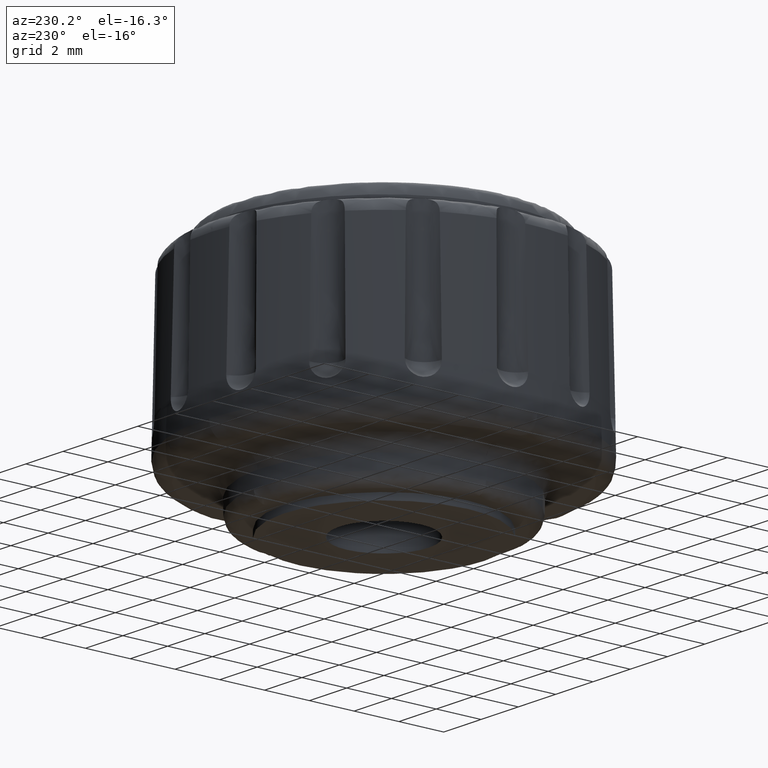
[diagram: clean part render]
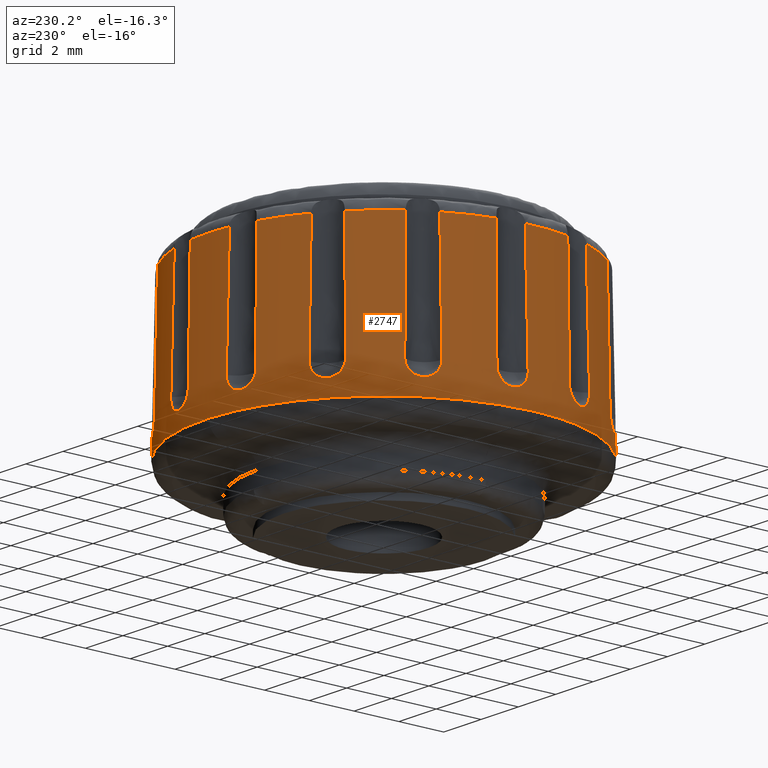
[diagram: same view with one face highlighted and labeled with its STEP entity id]
A machine part, auxiliary view. The second image highlights one B-rep face of the part: STEP entity #2747.
In plain terms, the highlighted face is a freeform B-spline surface patch.
Its self-contained STEP definition (entity closure, byte-faithful):
#1773=CARTESIAN_POINT('',(-4.324813947914181,-6.545931329954355,9.580110386782051));
#1774=CARTESIAN_POINT('',(-10.506486716710839,-2.461778401310739,9.580110386782051));
#1775=CARTESIAN_POINT('',(-6.782562863733485,3.943358170399240,9.580110386782051));
#1776=CARTESIAN_POINT('',(-2.839204693334245,10.725921034132725,9.580110386782051));
#1777=CARTESIAN_POINT('',(3.943358170399240,6.782562863733485,9.580110386782051));
#1778=CARTESIAN_POINT('',(10.725921034132725,2.839204693334245,9.580110386782051));
#1779=CARTESIAN_POINT('',(6.782562863733485,-3.943358170399240,9.580110386782051));
#1780=CARTESIAN_POINT('',(-4.403840365887593,-6.665543759884596,2.542610382233834));
#1781=CARTESIAN_POINT('',(-10.698469544343766,-2.506761961584753,2.542610382233835));
#1782=CARTESIAN_POINT('',(-6.906499212037867,4.015414326975209,2.542610382233834));
#1783=CARTESIAN_POINT('',(-2.891084885062658,10.921913539013076,2.542610382233835));
#1784=CARTESIAN_POINT('',(4.015414326975209,6.906499212037867,2.542610382233834));
#1785=CARTESIAN_POINT('',(10.921913539013076,2.891084885062658,2.542610382233835));
#1786=CARTESIAN_POINT('',(6.906499212037867,-4.015414326975209,2.542610382233834));
#1794=(BOUNDED_SURFACE()B_SPLINE_SURFACE(2,1,((#1773,#1780),(#1774,#1781),(#1775,#1782),(#1776,#1783),(#1777,#1784),(#1778,#1785),(#1779,#1786)),.UNSPECIFIED.,.F.,.F.,.U.)B_SPLINE_SURFACE_WITH_KNOTS((3,2,2,3),(2,2),(0.0,12.707060891669631,25.943582653825491,39.180104415981347),(0.0,7.038960052603488),.UNSPECIFIED.)GEOMETRIC_REPRESENTATION_ITEM()RATIONAL_B_SPLINE_SURFACE(((0.977505800795127,0.977505800795127),(0.718822509939086,0.718822509939086),(1.0,1.0),(0.707106781186548,0.707106781186548),(1.0,1.0),(0.707106781186548,0.707106781186548),(1.0,1.0)))REPRESENTATION_ITEM('')SURFACE());
#1795=CARTESIAN_POINT('',(-4.401912892312241,-6.662626383544998,2.714256722890686));
#1796=VERTEX_POINT('',#1795);
#1797=CARTESIAN_POINT('',(-7.982929094253235,-0.200675145513430,2.714256723850055));
#1798=VERTEX_POINT('',#1797);
#1799=CARTESIAN_POINT('',(-4.401912892312241,-6.662626383544998,2.714256722890686));
#1800=CARTESIAN_POINT('',(-4.777415748664816,-6.414581295367901,2.714256722879165));
#1801=CARTESIAN_POINT('',(-5.336630265169111,-5.972932389045960,2.714256722880866));
#1802=CARTESIAN_POINT('',(-5.970267054117909,-5.318186020056647,2.714256722923071));
#1803=CARTESIAN_POINT('',(-6.487957787900223,-4.681445571096003,2.714256722984139));
#1804=CARTESIAN_POINT('',(-6.958511250249890,-3.959183036278975,2.714256723077061));
#1805=CARTESIAN_POINT('',(-7.327072971736094,-3.202811485246633,2.714256723199687));
#1806=CARTESIAN_POINT('',(-7.650659931919936,-2.351664048702805,2.714256723356036));
#1807=CARTESIAN_POINT('',(-7.895121410510759,-1.388921580558568,2.714256723557777));
#1808=CARTESIAN_POINT('',(-7.973394171649976,-0.580579560054562,2.714256723752816));
#1809=CARTESIAN_POINT('',(-7.982929094253235,-0.200675145513430,2.714256723850055));
#1810=B_SPLINE_CURVE_WITH_KNOTS('',3,(#1799,#1800,#1801,#1802,#1803,#1804,#1805,#1806,#1807,#1808,#1809),.UNSPECIFIED.,.F.,.U.,(4,1,1,1,1,1,1,1,4),(3.112449E-009,1.350088439914581,2.130140978806541,2.730180338786495,3.810256418631747,4.710307979084814,5.250344933135564,6.540433632705679,7.680506689410560),.UNSPECIFIED.);
#1811=EDGE_CURVE('',#1796,#1798,#1810,.T.);
#1812=ORIENTED_EDGE('',*,*,#1811,.F.);
#1813=CARTESIAN_POINT('',(-4.326699017142445,-6.548784524059361,9.412215982868231));
#1814=VERTEX_POINT('',#1813);
#1815=CARTESIAN_POINT('',(-4.326699017142445,-6.548784524059361,9.412215982868231));
#1816=CARTESIAN_POINT('',(-4.401912892312241,-6.662626383544998,2.714256722890686));
#1817=QUASI_UNIFORM_CURVE('',1,(#1815,#1816),.UNSPECIFIED.,.F.,.U.);
#1818=EDGE_CURVE('',#1814,#1796,#1817,.T.);
#1819=ORIENTED_EDGE('',*,*,#1818,.F.);
#1820=CARTESIAN_POINT('',(-5.420122522255470,-5.677075191486190,9.412215999999800));
#1821=VERTEX_POINT('',#1820);
#1822=CARTESIAN_POINT('',(-4.326699017142445,-6.548784524059361,9.412215982868231));
#1823=CARTESIAN_POINT('',(-4.716145838500720,-6.291523337358958,9.412215988621671));
#1824=CARTESIAN_POINT('',(-5.082546362344313,-5.999400103469979,9.412215994362510));
#1825=CARTESIAN_POINT('',(-5.420122522255470,-5.677075191486190,9.412215999999800));
#1826=B_SPLINE_CURVE_WITH_KNOTS('',3,(#1822,#1823,#1824,#1825),.UNSPECIFIED.,.F.,.U.,(4,4),(8.493295E-011,1.400232660501246),.UNSPECIFIED.);
#1827=EDGE_CURVE('',#1814,#1821,#1826,.T.);
#1828=ORIENTED_EDGE('',*,*,#1827,.T.);
#1829=CARTESIAN_POINT('',(-5.461426303744900,-5.787072312373681,4.099997999999935));
#1830=VERTEX_POINT('',#1829);
#1831=CARTESIAN_POINT('',(-5.420122522255469,-5.677075191486196,9.412215999999800));
#1832=CARTESIAN_POINT('',(-5.431213620575300,-5.716357083927331,7.641511708373069));
#1833=CARTESIAN_POINT('',(-5.445165087540626,-5.752819106737463,5.870766568932547));
#1834=CARTESIAN_POINT('',(-5.461426303744891,-5.787072312373696,4.099997999999935));
#1835=QUASI_UNIFORM_CURVE('',3,(#1831,#1832,#1833,#1834),.UNSPECIFIED.,.F.,.U.);
#1836=EDGE_CURVE('',#1821,#1830,#1835,.T.);
#1837=ORIENTED_EDGE('',*,*,#1836,.T.);
#1838=CARTESIAN_POINT('',(-6.326244623515130,-4.826594263383310,4.099997999999900));
#1839=VERTEX_POINT('',#1838);
#1840=CARTESIAN_POINT('',(-5.461426303744892,-5.787072312373686,4.099997999999935));
#1841=CARTESIAN_POINT('',(-5.461823363778650,-5.787908693786704,4.056760063862296));
#1842=CARTESIAN_POINT('',(-5.465264614360350,-5.785861600505345,4.014052872145348));
#1843=CARTESIAN_POINT('',(-5.474770863172374,-5.778628255685349,3.951159295153286));
#1844=CARTESIAN_POINT('',(-5.478668850649814,-5.775518303045692,3.930367788898131));
#1845=CARTESIAN_POINT('',(-5.487945959138883,-5.767863223306196,3.889137819467669));
#1846=CARTESIAN_POINT('',(-5.493360226154819,-5.763287281576869,3.868599911072899));
#1847=CARTESIAN_POINT('',(-5.511535586621080,-5.747615285587160,3.808713784754953));
#1848=CARTESIAN_POINT('',(-5.526236703163476,-5.734578721974373,3.770821705484273));
#1849=CARTESIAN_POINT('',(-5.560639417870191,-5.703267713272338,3.699054588545497));
#1850=CARTESIAN_POINT('',(-5.580579321580052,-5.684763259542470,3.664925583148737));
#1851=CARTESIAN_POINT('',(-5.623873920227604,-5.643699876193527,3.603593024302855));
#1852=CARTESIAN_POINT('',(-5.647325675409022,-5.621060548518841,3.576057925618115));
#1853=CARTESIAN_POINT('',(-5.685163214581775,-5.583765681576622,3.539551134633678));
#1854=CARTESIAN_POINT('',(-5.698285126352682,-5.570710007263834,3.528148271860913));
#1855=CARTESIAN_POINT('',(-5.724861283425841,-5.544000481201277,3.507467088351668));
#1856=CARTESIAN_POINT('',(-5.738366895326816,-5.530297115154738,3.498128390892814));
#1857=CARTESIAN_POINT('',(-5.779503444492947,-5.488139546855684,3.473063808605964));
#1858=CARTESIAN_POINT('',(-5.807828337265418,-5.458560638795156,3.460234866562904));
#1859=CARTESIAN_POINT('',(-5.865782159968298,-5.396756399441790,3.442910554491251));
#1860=CARTESIAN_POINT('',(-5.894566401046305,-5.365434056113281,3.438643393517679));
#1861=CARTESIAN_POINT('',(-5.937441461285458,-5.317821678854613,3.438608748970210));
#1862=CARTESIAN_POINT('',(-5.951683035229952,-5.301845722985722,3.439666235864334));
#1863=CARTESIAN_POINT('',(-5.980065061942235,-5.269679344078380,3.443978891481152));
#1864=CARTESIAN_POINT('',(-5.994170493940234,-5.253526397634426,3.447243949767363));
#1865=CARTESIAN_POINT('',(-6.035387337522796,-5.205849126061067,3.460110190824151));
#1866=CARTESIAN_POINT('',(-6.061728251684266,-5.174736222340795,3.472790711159389));
#1867=CARTESIAN_POINT('',(-6.099601056808385,-5.129129293915574,3.497960312160763));
#1868=CARTESIAN_POINT('',(-6.112014507061394,-5.114026298714838,3.507444843633658));
#1869=CARTESIAN_POINT('',(-6.135834845799812,-5.084760848181341,3.528155276085064));
#1870=CARTESIAN_POINT('',(-6.147271395918454,-5.070564514343381,3.539385873836060));
#1871=CARTESIAN_POINT('',(-6.180223758005798,-5.029270986452588,3.575634644379616));
#1872=CARTESIAN_POINT('',(-6.200424381449627,-5.003416791486878,3.603235237836805));
#1873=CARTESIAN_POINT('',(-6.237139264734483,-4.955543380624290,3.665240703632744));
#1874=CARTESIAN_POINT('',(-6.253114981439832,-4.934231222333167,3.698711784835258));
#1875=CARTESIAN_POINT('',(-6.273777342970965,-4.906114123342305,3.752459582313321));
#1876=CARTESIAN_POINT('',(-6.280110138564403,-4.897388221770109,3.770970159134654));
#1877=CARTESIAN_POINT('',(-6.291660168588988,-4.881270464749257,3.809206311734351));
#1878=CARTESIAN_POINT('',(-6.296869644626876,-4.873888000039758,3.828941906224731));
#1879=CARTESIAN_POINT('',(-6.310510195934890,-4.854237236719659,3.888695729477068));
#1880=CARTESIAN_POINT('',(-6.317108992835375,-4.844255566804651,3.929669792465867));
#1881=CARTESIAN_POINT('',(-6.325438810759091,-4.830547877813245,4.013879292769128));
#1882=CARTESIAN_POINT('',(-6.327107416306394,-4.826898022097852,4.057280467177298));
#1883=CARTESIAN_POINT('',(-6.326244623515124,-4.826594263383316,4.099997999999899));
#1884=B_SPLINE_CURVE_WITH_KNOTS('',3,(#1840,#1841,#1842,#1843,#1844,#1845,#1846,#1847,#1848,#1849,#1850,#1851,#1852,#1853,#1854,#1855,#1856,#1857,#1858,#1859,#1860,#1861,#1862,#1863,#1864,#1865,#1866,#1867,#1868,#1869,#1870,#1871,#1872,#1873,#1874,#1875,#1876,#1877,#1878,#1879,#1880,#1881,#1882,#1883),.UNSPECIFIED.,.F.,.U.,(4,2,2,2,2,2,2,2,2,2,2,2,2,2,2,2,2,2,2,2,2,4),(0.0,0.062500000000000,0.093750000000000,0.125000000000000,0.187500000000000,0.250000000000000,0.312500000000001,0.343750000000001,0.375000000000002,0.437500000000002,0.500000000000002,0.531250000000002,0.562500000000002,0.625000000000002,0.656250000000002,0.687500000000002,0.750000000000002,0.812500000000001,0.843750000000001,0.875000000000000,0.937500000000000,1.0),.UNSPECIFIED.);
#1885=EDGE_CURVE('',#1830,#1839,#1884,.T.);
#1886=ORIENTED_EDGE('',*,*,#1885,.T.);
#1887=CARTESIAN_POINT('',(-6.212530992362900,-4.797014291706230,9.412215961043639));
#1888=VERTEX_POINT('',#1887);
#1889=CARTESIAN_POINT('',(-6.326244623515130,-4.826594263383310,4.099997999999900));
#1890=CARTESIAN_POINT('',(-6.290478742942761,-4.814002466320418,5.870766683381367));
#1891=CARTESIAN_POINT('',(-6.252757589092196,-4.803938652226182,7.641511502886163));
#1892=CARTESIAN_POINT('',(-6.212530992362900,-4.797014291706230,9.412215961043639));
#1893=QUASI_UNIFORM_CURVE('',3,(#1889,#1890,#1891,#1892),.UNSPECIFIED.,.F.,.U.);
#1894=EDGE_CURVE('',#1839,#1888,#1893,.T.);
#1895=ORIENTED_EDGE('',*,*,#1894,.T.);
#1896=CARTESIAN_POINT('',(-7.260602815946840,-2.981703814115975,9.412215999999800));
#1897=VERTEX_POINT('',#1896);
#1898=CARTESIAN_POINT('',(-6.212530992362900,-4.797014291706230,9.412215961043639));
#1899=CARTESIAN_POINT('',(-6.413307913664100,-4.537007641840622,9.412215967094078));
#1900=CARTESIAN_POINT('',(-6.806730180151970,-3.955382963504629,9.412215980111078));
#1901=CARTESIAN_POINT('',(-7.119187946771433,-3.326105156397893,9.412215993142638));
#1902=CARTESIAN_POINT('',(-7.260602815946840,-2.981703814115975,9.412215999999800));
#1903=B_SPLINE_CURVE_WITH_KNOTS('',3,(#1898,#1899,#1900,#1901,#1902),.UNSPECIFIED.,.F.,.U.,(4,1,4),(2.569180E-010,0.985511256967917,2.102421988325665),.UNSPECIFIED.);
#1904=EDGE_CURVE('',#1888,#1897,#1903,.T.);
#1905=ORIENTED_EDGE('',*,*,#1904,.T.);
#1906=CARTESIAN_POINT('',(-7.343075557607750,-3.065391422827165,4.099997999999935));
#1907=VERTEX_POINT('',#1906);
#1908=CARTESIAN_POINT('',(-7.260602815946845,-2.981703814115977,9.412215999999800));
#1909=CARTESIAN_POINT('',(-7.286712423502366,-3.013078452424550,7.641511708373069));
#1910=CARTESIAN_POINT('',(-7.314288163533536,-3.040713594899748,5.870766568932546));
#1911=CARTESIAN_POINT('',(-7.343075557607754,-3.065391422827175,4.099997999999935));
#1912=QUASI_UNIFORM_CURVE('',3,(#1908,#1909,#1910,#1911),.UNSPECIFIED.,.F.,.U.);
#1913=EDGE_CURVE('',#1897,#1907,#1912,.T.);
#1914=ORIENTED_EDGE('',*,*,#1913,.T.);
#1915=CARTESIAN_POINT('',(-7.742464787925609,-1.836197763752790,4.099997999999900));
#1916=VERTEX_POINT('',#1915);
#1917=CARTESIAN_POINT('',(-7.343075557607750,-3.065391422827165,4.099997999999935));
#1918=CARTESIAN_POINT('',(-7.343774051064385,-3.065990202327992,4.057032309627412));
#1919=CARTESIAN_POINT('',(-7.346055340983757,-3.062781361061263,4.014524822014842));
#1920=CARTESIAN_POINT('',(-7.353717074019834,-3.048816228277418,3.930415743569606));
#1921=CARTESIAN_POINT('',(-7.359176199790492,-3.037883881095139,3.888522311941590));
#1922=CARTESIAN_POINT('',(-7.372732062706930,-3.009119024504947,3.809106601493923));
#1923=CARTESIAN_POINT('',(-7.380842858577986,-2.991276240807427,3.771180473842805));
#1924=CARTESIAN_POINT('',(-7.394941767481806,-2.959150885335387,3.717025275432325));
#1925=CARTESIAN_POINT('',(-7.399984968025004,-2.947495044933820,3.699386002914049));
#1926=CARTESIAN_POINT('',(-7.410486788264429,-2.922856328567816,3.665803037687477));
#1927=CARTESIAN_POINT('',(-7.415967610153748,-2.909824004588782,3.649763160490082));
#1928=CARTESIAN_POINT('',(-7.433054767689814,-2.868607677252604,3.603862903808550));
#1929=CARTESIAN_POINT('',(-7.445338495493485,-2.838227803079461,3.576126831644212));
#1930=CARTESIAN_POINT('',(-7.471362116132957,-2.771866737671507,3.527166999261148));
#1931=CARTESIAN_POINT('',(-7.484727728864804,-2.736840019674825,3.506617238533414));
#1932=CARTESIAN_POINT('',(-7.505172973230528,-2.681569582088577,3.481511159926048));
#1933=CARTESIAN_POINT('',(-7.512055167049477,-2.662687852555776,3.474102621909323));
#1934=CARTESIAN_POINT('',(-7.525942155206200,-2.623974717296036,3.461263134141988));
#1935=CARTESIAN_POINT('',(-7.532945513889971,-2.604142348897504,3.455849591268504));
#1936=CARTESIAN_POINT('',(-7.553639227048380,-2.544576466609874,3.442964966241921));
#1937=CARTESIAN_POINT('',(-7.567176678769062,-2.504325419405466,3.438651938201563));
#1938=CARTESIAN_POINT('',(-7.587066064037862,-2.443127576163745,3.438604595794037));
#1939=CARTESIAN_POINT('',(-7.593663509808101,-2.422471417767941,3.439683099518506));
#1940=CARTESIAN_POINT('',(-7.606503114359531,-2.381553733557430,3.444011053208114));
#1941=CARTESIAN_POINT('',(-7.612741497634634,-2.361309746488926,3.447242447161730));
#1942=CARTESIAN_POINT('',(-7.630937906435061,-2.301208020665974,3.460051770827446));
#1943=CARTESIAN_POINT('',(-7.642379911380469,-2.261973502800865,3.472713793449704));
#1944=CARTESIAN_POINT('',(-7.663949674266004,-2.185263376835335,3.506573426459486));
#1945=CARTESIAN_POINT('',(-7.673729278343783,-2.149029241335971,3.527230519389962));
#1946=CARTESIAN_POINT('',(-7.687043815102582,-2.097881276098972,3.563479376338117));
#1947=CARTESIAN_POINT('',(-7.691256809723391,-2.081361881671792,3.576449887126143));
#1948=CARTESIAN_POINT('',(-7.699247066347921,-2.049410747134758,3.604202067674162));
#1949=CARTESIAN_POINT('',(-7.703024606191802,-2.033973418065127,3.619009890796689));
#1950=CARTESIAN_POINT('',(-7.713492075255103,-1.990316899268703,3.665181712947466));
#1951=CARTESIAN_POINT('',(-7.719418127843452,-1.964362001182399,3.698572121404280));
#1952=CARTESIAN_POINT('',(-7.726887081606958,-1.930137765455629,3.752531198796982));
#1953=CARTESIAN_POINT('',(-7.729148019826393,-1.919470938520839,3.771269083224001));
#1954=CARTESIAN_POINT('',(-7.733143165544621,-1.900044552951243,3.809565536247265));
#1955=CARTESIAN_POINT('',(-7.734875039565798,-1.891301009380779,3.829064104371414));
#1956=CARTESIAN_POINT('',(-7.739324640490351,-1.867899245347219,3.888580072039232));
#1957=CARTESIAN_POINT('',(-7.741304911052173,-1.856043369733020,3.929608070943580));
#1958=CARTESIAN_POINT('',(-7.743346307763679,-1.840047784808205,4.014439731408380));
#1959=CARTESIAN_POINT('',(-7.743375652332770,-1.836124403047368,4.057321970197899));
#1960=CARTESIAN_POINT('',(-7.742464787925612,-1.836197763752788,4.099997999999900));
#1961=B_SPLINE_CURVE_WITH_KNOTS('',3,(#1917,#1918,#1919,#1920,#1921,#1922,#1923,#1924,#1925,#1926,#1927,#1928,#1929,#1930,#1931,#1932,#1933,#1934,#1935,#1936,#1937,#1938,#1939,#1940,#1941,#1942,#1943,#1944,#1945,#1946,#1947,#1948,#1949,#1950,#1951,#1952,#1953,#1954,#1955,#1956,#1957,#1958,#1959,#1960),.UNSPECIFIED.,.F.,.U.,(4,2,2,2,2,2,2,2,2,2,2,2,2,2,2,2,2,2,2,2,2,4),(0.0,0.062500000000001,0.125000000000003,0.187500000000004,0.218750000000004,0.250000000000005,0.312500000000005,0.375000000000005,0.406250000000006,0.437500000000006,0.500000000000007,0.531250000000008,0.562500000000008,0.625000000000007,0.687500000000007,0.718750000000006,0.750000000000006,0.812500000000005,0.843750000000004,0.875000000000004,0.937500000000002,1.0),.UNSPECIFIED.);
#1962=EDGE_CURVE('',#1907,#1916,#1961,.T.);
#1963=ORIENTED_EDGE('',*,*,#1962,.T.);
#1964=CARTESIAN_POINT('',(-7.626550958332240,-1.855426615596810,9.412215961043639));
#1965=VERTEX_POINT('',#1964);
#1966=CARTESIAN_POINT('',(-7.742464787925609,-1.836197763752790,4.099997999999900));
#1967=CARTESIAN_POINT('',(-7.704669484922485,-1.839241878943082,5.870766683381367));
#1968=CARTESIAN_POINT('',(-7.666116174204038,-1.845390702780855,7.641511502886163));
#1969=CARTESIAN_POINT('',(-7.626550958332240,-1.855426615596810,9.412215961043639));
#1970=QUASI_UNIFORM_CURVE('',3,(#1966,#1967,#1968,#1969),.UNSPECIFIED.,.F.,.U.);
#1971=EDGE_CURVE('',#1916,#1965,#1970,.T.);
#1972=ORIENTED_EDGE('',*,*,#1971,.T.);
#1973=CARTESIAN_POINT('',(-7.845658922255160,0.229231240643653,9.412215999999800));
#1974=VERTEX_POINT('',#1973);
#1975=CARTESIAN_POINT('',(-7.626550958332240,-1.855426615596810,9.412215961043639));
#1976=CARTESIAN_POINT('',(-7.719763768825820,-1.472400242653725,9.412215968304157));
#1977=CARTESIAN_POINT('',(-7.833979070984448,-0.778948346967175,9.412215981343058));
#1978=CARTESIAN_POINT('',(-7.854621691581754,-0.077241397926871,9.412215994352652));
#1979=CARTESIAN_POINT('',(-7.845658922255160,0.229231240643653,9.412215999999800));
#1980=B_SPLINE_CURVE_WITH_KNOTS('',3,(#1975,#1976,#1977,#1978,#1979),.UNSPECIFIED.,.F.,.U.,(4,1,4),(2.568212E-010,1.182611263715271,2.102421988325666),.UNSPECIFIED.);
#1981=EDGE_CURVE('',#1965,#1974,#1980,.T.);
#1982=ORIENTED_EDGE('',*,*,#1981,.T.);
#1983=CARTESIAN_POINT('',(-7.955040337813040,0.186323491932988,4.099997999999935));
#1984=VERTEX_POINT('',#1983);
#1985=CARTESIAN_POINT('',(-7.845658922255160,0.229231240643647,9.412215999999800));
#1986=CARTESIAN_POINT('',(-7.882272450701684,0.211188816460830,7.641511708373069));
#1987=CARTESIAN_POINT('',(-7.918704367829575,0.197158921511917,5.870766568932547));
#1988=CARTESIAN_POINT('',(-7.955040337813046,0.186323491932979,4.099997999999935));
#1989=QUASI_UNIFORM_CURVE('',3,(#1985,#1986,#1987,#1988),.UNSPECIFIED.,.F.,.U.);
#1990=EDGE_CURVE('',#1974,#1984,#1989,.T.);
#1991=ORIENTED_EDGE('',*,*,#1990,.T.);
#1992=CARTESIAN_POINT('',(-7.819942452419331,1.471694010563588,4.099997999999900));
#1993=VERTEX_POINT('',#1992);
#1994=CARTESIAN_POINT('',(-7.955040337813040,0.186323491932988,4.099997999999935));
#1995=CARTESIAN_POINT('',(-7.955480050225949,0.186192369157505,4.078569401331736));
#1996=CARTESIAN_POINT('',(-7.955899953258136,0.187104843994204,4.056923299658664));
#1997=CARTESIAN_POINT('',(-7.956681593833131,0.191018753253293,4.013999577522986));
#1998=CARTESIAN_POINT('',(-7.957042514879215,0.194001530738219,3.992782755582584));
#1999=CARTESIAN_POINT('',(-7.958027779769065,0.205945798087287,3.929847789153734));
#2000=CARTESIAN_POINT('',(-7.958557982255046,0.217874510379915,3.888838320644170));
#2001=CARTESIAN_POINT('',(-7.959075263125985,0.241913580123320,3.828790838573331));
#2002=CARTESIAN_POINT('',(-7.959199165084892,0.250940268840450,3.809100469024985));
#2003=CARTESIAN_POINT('',(-7.959328078604517,0.270667670394332,3.771060456931155));
#2004=CARTESIAN_POINT('',(-7.959340088913960,0.292148344804364,3.734153835823530));
#2005=CARTESIAN_POINT('',(-7.959077739255143,0.317098480330646,3.699490195521178));
#2006=CARTESIAN_POINT('',(-7.958651902364013,0.343815129259153,3.665968688062039));
#2007=CARTESIAN_POINT('',(-7.958354868230162,0.358142529802134,3.649694363842004));
#2008=CARTESIAN_POINT('',(-7.957186542042043,0.403208888610892,3.603359484321841));
#2009=CARTESIAN_POINT('',(-7.956048036417512,0.435844847412970,3.575852276115274));
#2010=CARTESIAN_POINT('',(-7.952869413911271,0.506195652981439,3.527477204645439));
#2011=CARTESIAN_POINT('',(-7.950796181929617,0.544373966156838,3.506461555158813));
#2012=CARTESIAN_POINT('',(-7.945704008826750,0.623035834779332,3.472944682536595));
#2013=CARTESIAN_POINT('',(-7.942688156974562,0.663652535730327,3.460232361136181));
#2014=CARTESIAN_POINT('',(-7.937364976725847,0.726523818135390,3.447308338880062));
#2015=CARTESIAN_POINT('',(-7.935445117892887,0.747924916267435,3.444026767271386));
#2016=CARTESIAN_POINT('',(-7.931402342232436,0.790533830681705,3.439697283426009));
#2017=CARTESIAN_POINT('',(-7.929275749257847,0.811799769915685,3.438624810834193));
#2018=CARTESIAN_POINT('',(-7.922583636607701,0.875484208724793,3.438611034160100));
#2019=CARTESIAN_POINT('',(-7.917693203568577,0.917894634233089,3.442862507973422));
#2020=CARTESIAN_POINT('',(-7.907137973097840,1.001975279754864,3.460140926531043));
#2021=CARTESIAN_POINT('',(-7.901630415598000,1.042416631538635,3.472893168233863));
#2022=CARTESIAN_POINT('',(-7.893121547099377,1.100787830718231,3.497944605781031));
#2023=CARTESIAN_POINT('',(-7.890244049163534,1.119860228078552,3.507289802106781));
#2024=CARTESIAN_POINT('',(-7.884424571156522,1.157219563935154,3.528018608338909));
#2025=CARTESIAN_POINT('',(-7.881491121646733,1.175444909399710,3.539383916800071));
#2026=CARTESIAN_POINT('',(-7.872820994720323,1.227756154372411,3.575776126111283));
#2027=CARTESIAN_POINT('',(-7.867150212100436,1.259904128584736,3.603291802800085));
#2028=CARTESIAN_POINT('',(-7.858953210824661,1.304077218609329,3.649428704806150));
#2029=CARTESIAN_POINT('',(-7.856259220619576,1.318189189839361,3.665718660678948));
#2030=CARTESIAN_POINT('',(-7.851099225186142,1.344527234734406,3.699363751044315));
#2031=CARTESIAN_POINT('',(-7.848627275899814,1.356789960204079,3.716738538611687));
#2032=CARTESIAN_POINT('',(-7.841561615154902,1.390937904748097,3.770476110029254));
#2033=CARTESIAN_POINT('',(-7.837315296226147,1.410208538910692,3.808436507660021));
#2034=CARTESIAN_POINT('',(-7.829946293981097,1.441554119432557,3.888775020766349));
#2035=CARTESIAN_POINT('',(-7.826943469644692,1.453124388095520,3.929863816206350));
#2036=CARTESIAN_POINT('',(-7.823497853967493,1.464597988069682,3.992771119417068));
#2037=CARTESIAN_POINT('',(-7.822526206175620,1.467435785710272,4.013956745750377));
#2038=CARTESIAN_POINT('',(-7.820950782332319,1.471098504416523,4.056770112926081));
#2039=CARTESIAN_POINT('',(-7.820347362157475,1.471914817090362,4.078459394121718));
#2040=CARTESIAN_POINT('',(-7.819942452419331,1.471694010563588,4.099997999999900));
#2041=B_SPLINE_CURVE_WITH_KNOTS('',3,(#1994,#1995,#1996,#1997,#1998,#1999,#2000,#2001,#2002,#2003,#2004,#2005,#2006,#2007,#2008,#2009,#2010,#2011,#2012,#2013,#2014,#2015,#2016,#2017,#2018,#2019,#2020,#2021,#2022,#2023,#2024,#2025,#2026,#2027,#2028,#2029,#2030,#2031,#2032,#2033,#2034,#2035,#2036,#2037,#2038,#2039,#2040),.UNSPECIFIED.,.F.,.U.,(4,2,2,2,2,1,2,2,2,2,2,2,2,2,2,2,2,2,2,2,2,2,2,4),(0.0,0.031249999999999,0.062499999999999,0.124999999999999,0.156249999999999,0.187500000000000,0.218750000000000,0.250000000000000,0.312500000000001,0.375000000000001,0.437500000000002,0.468750000000002,0.500000000000003,0.562500000000003,0.625000000000004,0.656250000000004,0.687500000000004,0.750000000000003,0.781250000000003,0.812500000000003,0.875000000000002,0.937500000000001,0.968750000000000,1.0),.UNSPECIFIED.);
#2042=EDGE_CURVE('',#1984,#1993,#2041,.T.);
#2043=ORIENTED_EDGE('',*,*,#2042,.T.);
#2044=CARTESIAN_POINT('',(-7.721870978565580,1.406981178370932,9.412215961043639));
#2045=VERTEX_POINT('',#2044);
#2046=CARTESIAN_POINT('',(-7.819942452419331,1.471694010563588,4.099997999999900));
#2047=CARTESIAN_POINT('',(-7.786652878234233,1.453540338291432,5.870766683381367));
#2048=CARTESIAN_POINT('',(-7.753933628316949,1.432242064023509,7.641511502886163));
#2049=CARTESIAN_POINT('',(-7.721870978565580,1.406981178370932,9.412215961043639));
#2050=QUASI_UNIFORM_CURVE('',3,(#2046,#2047,#2048,#2049),.UNSPECIFIED.,.F.,.U.);
#2051=EDGE_CURVE('',#1993,#2045,#2050,.T.);
#2052=ORIENTED_EDGE('',*,*,#2051,.T.);
#2053=CARTESIAN_POINT('',(-7.074129325331840,3.400530131395550,9.412215999999800));
#2054=VERTEX_POINT('',#2053);
#2055=CARTESIAN_POINT('',(-7.721870978565580,1.406981178370932,9.412215961043639));
#2056=CARTESIAN_POINT('',(-7.672803049389107,1.676300593406105,9.412215966085684));
#2057=CARTESIAN_POINT('',(-7.511074579551670,2.359177880443691,9.412215979084433));
#2058=CARTESIAN_POINT('',(-7.259180876778973,3.015649213333504,9.412215992134225));
#2059=CARTESIAN_POINT('',(-7.074129325331840,3.400530131395550,9.412215999999800));
#2060=B_SPLINE_CURVE_WITH_KNOTS('',3,(#2055,#2056,#2057,#2058,#2059),.UNSPECIFIED.,.F.,.U.,(4,1,4),(2.567795E-010,0.821259356360233,2.102421988325666),.UNSPECIFIED.);
#2061=EDGE_CURVE('',#2045,#2054,#2060,.T.);
#2062=ORIENTED_EDGE('',*,*,#2061,.T.);
#2063=CARTESIAN_POINT('',(-7.191506374337780,3.405821382242145,4.099997999999935));
#2064=VERTEX_POINT('',#2063);
#2065=CARTESIAN_POINT('',(-7.074129325331847,3.400530131395546,9.412215999999800));
#2066=CARTESIAN_POINT('',(-7.114915962977506,3.398939620389971,7.641511708373069));
#2067=CARTESIAN_POINT('',(-7.153904647757129,3.400940869261602,5.870766568932547));
#2068=CARTESIAN_POINT('',(-7.191506374337790,3.405821382242138,4.099997999999936));
#2069=QUASI_UNIFORM_CURVE('',3,(#2065,#2066,#2067,#2068),.UNSPECIFIED.,.F.,.U.);
#2070=EDGE_CURVE('',#2054,#2064,#2069,.T.);
#2071=ORIENTED_EDGE('',*,*,#2070,.T.);
#2072=CARTESIAN_POINT('',(-6.545281024942820,4.525116520533160,4.099997999999900));
#2073=VERTEX_POINT('',#2072);
#2074=CARTESIAN_POINT('',(-7.191506374337781,3.405821382242143,4.099997999999935));
#2075=CARTESIAN_POINT('',(-7.192424518549407,3.405940552693883,4.056760067608665));
#2076=CARTESIAN_POINT('',(-7.191541021716003,3.409845964530155,4.014052860863655));
#2077=CARTESIAN_POINT('',(-7.187599294115594,3.421122171439254,3.951159285791333));
#2078=CARTESIAN_POINT('',(-7.185846097733037,3.425790406048410,3.930367780921854));
#2079=CARTESIAN_POINT('',(-7.181432468717627,3.436979009487714,3.889137815710189));
#2080=CARTESIAN_POINT('',(-7.178753590184952,3.443542326818386,3.868599908351732));
#2081=CARTESIAN_POINT('',(-7.169465130424286,3.465671037494108,3.808713776341004));
#2082=CARTESIAN_POINT('',(-7.161609515920051,3.483681151045412,3.770821696859188));
#2083=CARTESIAN_POINT('',(-7.142462001305520,3.526075709047849,3.699054584695722));
#2084=CARTESIAN_POINT('',(-7.131024989341337,3.550757874602030,3.664925579920604));
#2085=CARTESIAN_POINT('',(-7.105350155981816,3.604622771687649,3.603593018152405));
#2086=CARTESIAN_POINT('',(-7.091065866725003,3.633922653183103,3.576057920839450));
#2087=CARTESIAN_POINT('',(-7.067288785473300,3.681433034305115,3.539551133938624));
#2088=CARTESIAN_POINT('',(-7.058926995183469,3.697947139049068,3.528148271183097));
#2089=CARTESIAN_POINT('',(-7.041737208857658,3.731476267147318,3.507467085898468));
#2090=CARTESIAN_POINT('',(-7.032877996339002,3.748555441337306,3.498128388170715));
#2091=CARTESIAN_POINT('',(-7.005495658550562,3.800706030402704,3.473063806174324));
#2092=CARTESIAN_POINT('',(-6.986117324677326,3.836784978133636,3.460234867852921));
#2093=CARTESIAN_POINT('',(-6.945246710973499,3.911000908670723,3.442910553466907));
#2094=CARTESIAN_POINT('',(-6.924352210895643,3.948055486728390,3.438643393171821));
#2095=CARTESIAN_POINT('',(-6.892319272637282,4.003545123791144,3.438608749138990));
#2096=CARTESIAN_POINT('',(-6.881526124906251,4.022026505907443,3.439666236128817));
#2097=CARTESIAN_POINT('',(-6.859704611859137,4.058959370636458,3.443978891230627));
#2098=CARTESIAN_POINT('',(-6.848701063300823,4.077365971633200,3.447243949883439));
#2099=CARTESIAN_POINT('',(-6.816093986286197,4.131298610266105,3.460110192109695));
#2100=CARTESIAN_POINT('',(-6.794643646845647,4.165964723750602,3.472790713112844));
#2101=CARTESIAN_POINT('',(-6.762972223660395,4.216077213229187,3.497960311967779));
#2102=CARTESIAN_POINT('',(-6.752444389568687,4.232550186907806,3.507444842507161));
#2103=CARTESIAN_POINT('',(-6.731972179627240,4.264248199934086,3.528155276953842));
#2104=CARTESIAN_POINT('',(-6.722004751638522,4.279511914649707,3.539385875450568));
#2105=CARTESIAN_POINT('',(-6.692915112338364,4.323611875787064,3.575634646880404));
#2106=CARTESIAN_POINT('',(-6.674568653211495,4.350813187818628,3.603235231418060));
#2107=CARTESIAN_POINT('',(-6.640383852280794,4.400524820885170,3.665240704626068));
#2108=CARTESIAN_POINT('',(-6.625051552802741,4.422304449979430,3.698711787646267));
#2109=CARTESIAN_POINT('',(-6.604695624200629,4.450644183903640,3.752459583466721));
#2110=CARTESIAN_POINT('',(-6.598353740596685,4.459363481620166,3.770970159004472));
#2111=CARTESIAN_POINT('',(-6.586593999549508,4.475328872113545,3.809206307257233));
#2112=CARTESIAN_POINT('',(-6.581182674276778,4.482564686307861,3.828941903851312));
#2113=CARTESIAN_POINT('',(-6.566708848782248,4.501610042863966,3.888695731653042));
#2114=CARTESIAN_POINT('',(-6.559254857267508,4.510970376819210,3.929669794755694));
#2115=CARTESIAN_POINT('',(-6.548792126372599,4.523128412443962,4.013879288442124));
#2116=CARTESIAN_POINT('',(-6.545836534302188,4.525843218659914,4.057280465685293));
#2117=CARTESIAN_POINT('',(-6.545281024942820,4.525116520533168,4.099997999999903));
#2118=B_SPLINE_CURVE_WITH_KNOTS('',3,(#2074,#2075,#2076,#2077,#2078,#2079,#2080,#2081,#2082,#2083,#2084,#2085,#2086,#2087,#2088,#2089,#2090,#2091,#2092,#2093,#2094,#2095,#2096,#2097,#2098,#2099,#2100,#2101,#2102,#2103,#2104,#2105,#2106,#2107,#2108,#2109,#2110,#2111,#2112,#2113,#2114,#2115,#2116,#2117),.UNSPECIFIED.,.F.,.U.,(4,2,2,2,2,2,2,2,2,2,2,2,2,2,2,2,2,2,2,2,2,4),(0.0,0.062499999999999,0.093749999999999,0.124999999999999,0.187499999999999,0.249999999999999,0.312499999999999,0.343749999999999,0.375000000000000,0.437500000000000,0.500000000000000,0.531250000000001,0.562500000000001,0.625000000000002,0.656250000000002,0.687500000000002,0.750000000000002,0.812500000000002,0.843750000000001,0.875000000000001,0.937500000000000,1.0),.UNSPECIFIED.);
#2119=EDGE_CURVE('',#2064,#2073,#2118,.T.);
#2120=ORIENTED_EDGE('',*,*,#2119,.T.);
#2121=CARTESIAN_POINT('',(-6.482009355609390,4.426109144575610,9.412215961043639));
#2122=VERTEX_POINT('',#2121);
#2123=CARTESIAN_POINT('',(-6.545281024942820,4.525116520533160,4.099997999999900));
#2124=CARTESIAN_POINT('',(-6.522253249378646,4.494992226035933,5.870766683381367));
#2125=CARTESIAN_POINT('',(-6.501025515818284,4.462227166447536,7.641511502886162));
#2126=CARTESIAN_POINT('',(-6.482009355609390,4.426109144575610,9.412215961043639));
#2127=QUASI_UNIFORM_CURVE('',3,(#2123,#2124,#2125,#2126),.UNSPECIFIED.,.F.,.U.);
#2128=EDGE_CURVE('',#2073,#2122,#2127,.T.);
#2129=ORIENTED_EDGE('',*,*,#2128,.T.);
#2130=CARTESIAN_POINT('',(-5.079418501611291,5.983846469582750,9.412215999999800));
#2131=VERTEX_POINT('',#2130);
#2132=CARTESIAN_POINT('',(-6.482009355609390,4.426109144575610,9.412215961043639));
#2133=CARTESIAN_POINT('',(-6.241219480234306,4.778809712361470,9.412215968909170));
#2134=CARTESIAN_POINT('',(-5.798645456113813,5.325191653551079,9.412215981959077));
#2135=CARTESIAN_POINT('',(-5.288121789237835,5.806692448560971,9.412215994957720));
#2136=CARTESIAN_POINT('',(-5.079418501611291,5.983846469582750,9.412215999999800));
#2137=B_SPLINE_CURVE_WITH_KNOTS('',3,(#2132,#2133,#2134,#2135,#2136),.UNSPECIFIED.,.F.,.U.,(4,1,4),(2.569172E-010,1.281162632222300,2.102421988325663),.UNSPECIFIED.);
#2138=EDGE_CURVE('',#2122,#2131,#2137,.T.);
#2139=ORIENTED_EDGE('',*,*,#2138,.T.);
#2140=CARTESIAN_POINT('',(-5.184495625955140,6.036421814645720,4.099997999999935));
#2141=VERTEX_POINT('',#2140);
#2142=CARTESIAN_POINT('',(-5.079418501611291,5.983846469582748,9.412215999999800));
#2143=CARTESIAN_POINT('',(-5.117325868272179,5.998982885556619,7.641511708373069));
#2144=CARTESIAN_POINT('',(-5.152129822904057,6.016669244138116,5.870766568932546));
#2145=CARTESIAN_POINT('',(-5.184495625955149,6.036421814645722,4.099997999999935));
#2146=QUASI_UNIFORM_CURVE('',3,(#2142,#2143,#2144,#2145),.UNSPECIFIED.,.F.,.U.);
#2147=EDGE_CURVE('',#2131,#2141,#2146,.T.);
#2148=ORIENTED_EDGE('',*,*,#2147,.T.);
#2149=CARTESIAN_POINT('',(-4.138881046242321,6.796105274709540,4.099997999999900));
#2150=VERTEX_POINT('',#2149);
#2151=CARTESIAN_POINT('',(-5.184495625955140,6.036421814645723,4.099997999999935));
#2152=CARTESIAN_POINT('',(-5.185285921508113,6.036904125206880,4.056760063862294));
#2153=CARTESIAN_POINT('',(-5.182890333782916,6.040112544742959,4.014052872145348));
#2154=CARTESIAN_POINT('',(-5.174702940402917,6.048810626911022,3.951159295153286));
#2155=CARTESIAN_POINT('',(-5.171202573768370,6.052362182234946,3.930367788898131));
#2156=CARTESIAN_POINT('',(-5.162619707462718,6.060788296031673,3.889137819467666));
#2157=CARTESIAN_POINT('',(-5.157502888210078,6.065694586969422,3.868599911072900));
#2158=CARTESIAN_POINT('',(-5.140016902555312,6.082132211252188,3.808713784754954));
#2159=CARTESIAN_POINT('',(-5.125515069481541,6.095390101579226,3.770821705484273));
#2160=CARTESIAN_POINT('',(-5.090779522860771,6.126331462992176,3.699054588545497));
#2161=CARTESIAN_POINT('',(-5.070292150972090,6.144227891711176,3.664925583148735));
#2162=CARTESIAN_POINT('',(-5.024928199269247,6.182993025659317,3.603593024302856));
#2163=CARTESIAN_POINT('',(-4.999961516270312,6.203949855540802,3.576057925618115));
#2164=CARTESIAN_POINT('',(-4.958915854687872,6.237681741585718,3.539551134633677));
#2165=CARTESIAN_POINT('',(-4.944560087452461,6.249367080578139,3.528148271860911));
#2166=CARTESIAN_POINT('',(-4.915218914109921,6.273005744968217,3.507467088351666));
#2167=CARTESIAN_POINT('',(-4.900178895678896,6.285004979919646,3.498128390892812));
#2168=CARTESIAN_POINT('',(-4.853952330681530,6.321509512935854,3.473063808605962));
#2169=CARTESIAN_POINT('',(-4.821574701460523,6.346587401177334,3.460234866562902));
#2170=CARTESIAN_POINT('',(-4.754051208169399,6.397763444612602,3.442910554491247));
#2171=CARTESIAN_POINT('',(-4.719891679428746,6.423115926192169,3.438643393517677));
#2172=CARTESIAN_POINT('',(-4.668058463595162,6.460779263737875,3.438608748970210));
#2173=CARTESIAN_POINT('',(-4.650681375845183,6.473272878733972,3.439666235864333));
#2174=CARTESIAN_POINT('',(-4.615724478090461,6.498137123578198,3.443978891481152));
#2175=CARTESIAN_POINT('',(-4.598185600046759,6.510476841874803,3.447243949767363));
#2176=CARTESIAN_POINT('',(-4.546461176235207,6.546484263345272,3.460110190824151));
#2177=CARTESIAN_POINT('',(-4.512765336978548,6.569428695209195,3.472790711159387));
#2178=CARTESIAN_POINT('',(-4.463449461959914,6.602326807001504,3.497960312160762));
#2179=CARTESIAN_POINT('',(-4.447131643668340,6.613093562196113,3.507444843633657));
#2180=CARTESIAN_POINT('',(-4.415536608932118,6.633724338055455,3.528155276085061));
#2181=CARTESIAN_POINT('',(-4.400222599087326,6.643614316595806,3.539385873836058));
#2182=CARTESIAN_POINT('',(-4.355710821692901,6.672069813182445,3.575634644379614));
#2183=CARTESIAN_POINT('',(-4.327886718586750,6.689457276228636,3.603235237836804));
#2184=CARTESIAN_POINT('',(-4.276437812949127,6.720966897472469,3.665240703632743));
#2185=CARTESIAN_POINT('',(-4.253572487774243,6.734627370375051,3.698711784835258));
#2186=CARTESIAN_POINT('',(-4.223449612295259,6.752237504178720,3.752459582313319));
#2187=CARTESIAN_POINT('',(-4.214109554733314,6.757623502973319,3.770970159134653));
#2188=CARTESIAN_POINT('',(-4.196872785582685,6.767425496352213,3.809206311734350));
#2189=CARTESIAN_POINT('',(-4.188986224262635,6.771834756644083,3.828941906224733));
#2190=CARTESIAN_POINT('',(-4.168017284013747,6.783346519492910,3.888695729477068));
#2191=CARTESIAN_POINT('',(-4.157400532631509,6.788865798876469,3.929669792465866));
#2192=CARTESIAN_POINT('',(-4.142897232727793,6.795717141520814,4.013879292769128));
#2193=CARTESIAN_POINT('',(-4.139092954530242,6.796995092463259,4.057280467177299));
#2194=CARTESIAN_POINT('',(-4.138881046242315,6.796105274709543,4.099997999999900));
#2195=B_SPLINE_CURVE_WITH_KNOTS('',3,(#2151,#2152,#2153,#2154,#2155,#2156,#2157,#2158,#2159,#2160,#2161,#2162,#2163,#2164,#2165,#2166,#2167,#2168,#2169,#2170,#2171,#2172,#2173,#2174,#2175,#2176,#2177,#2178,#2179,#2180,#2181,#2182,#2183,#2184,#2185,#2186,#2187,#2188,#2189,#2190,#2191,#2192,#2193,#2194),.UNSPECIFIED.,.F.,.U.,(4,2,2,2,2,2,2,2,2,2,2,2,2,2,2,2,2,2,2,2,2,4),(0.0,0.062499999999999,0.093749999999998,0.124999999999998,0.187499999999996,0.249999999999994,0.312499999999993,0.343749999999992,0.374999999999991,0.437499999999991,0.499999999999990,0.531249999999990,0.562499999999990,0.624999999999991,0.656249999999991,0.687499999999992,0.749999999999993,0.812499999999994,0.843749999999995,0.874999999999996,0.937499999999998,1.0),.UNSPECIFIED.);
#2196=EDGE_CURVE('',#2141,#2150,#2195,.T.);
#2197=ORIENTED_EDGE('',*,*,#2196,.T.);
#2198=CARTESIAN_POINT('',(-4.121349427862015,6.679922629743920,9.412215961043639));
#2199=VERTEX_POINT('',#2198);
#2200=CARTESIAN_POINT('',(-4.138881046242321,6.796105274709540,4.099997999999900));
#2201=CARTESIAN_POINT('',(-4.130096780894885,6.759219122176433,5.870766683381367));
#2202=CARTESIAN_POINT('',(-4.124031031671931,6.720652653731613,7.641511502886163));
#2203=CARTESIAN_POINT('',(-4.121349427862015,6.679922629743920,9.412215961043639));
#2204=QUASI_UNIFORM_CURVE('',3,(#2200,#2201,#2202,#2203),.UNSPECIFIED.,.F.,.U.);
#2205=EDGE_CURVE('',#2150,#2199,#2204,.T.);
#2206=ORIENTED_EDGE('',*,*,#2205,.T.);
#2207=CARTESIAN_POINT('',(-2.206430073893710,7.532501391640520,9.412215999999800));
#2208=VERTEX_POINT('',#2207);
#2209=CARTESIAN_POINT('',(-4.121349427862015,6.679922629743920,9.412215961043639));
#2210=CARTESIAN_POINT('',(-3.748600832632169,6.909941440398955,9.412215969110864));
#2211=CARTESIAN_POINT('',(-3.121284061234011,7.227823779241220,9.412215982164458));
#2212=CARTESIAN_POINT('',(-2.458635048541817,7.458625724978425,9.412215995159354));
#2213=CARTESIAN_POINT('',(-2.206430073893710,7.532501391640520,9.412215999999800));
#2214=B_SPLINE_CURVE_WITH_KNOTS('',3,(#2209,#2210,#2211,#2212,#2213),.UNSPECIFIED.,.F.,.U.,(4,1,4),(2.568874E-010,1.314013738674153,2.102421988325666),.UNSPECIFIED.);
#2215=EDGE_CURVE('',#2199,#2208,#2214,.T.);
#2216=ORIENTED_EDGE('',*,*,#2215,.T.);
#2217=CARTESIAN_POINT('',(-2.281038484180715,7.623270076126470,4.099997999999935));
#2218=VERTEX_POINT('',#2217);
#2219=CARTESIAN_POINT('',(-2.206430073893714,7.532501391640522,9.412215999999800));
#2220=CARTESIAN_POINT('',(-2.234903641496549,7.561747510761935,7.641511708373069));
#2221=CARTESIAN_POINT('',(-2.259504946040829,7.592060846979031,5.870766568932546));
#2222=CARTESIAN_POINT('',(-2.281038484180726,7.623270076126473,4.099997999999935));
#2223=QUASI_UNIFORM_CURVE('',3,(#2219,#2220,#2221,#2222),.UNSPECIFIED.,.F.,.U.);
#2224=EDGE_CURVE('',#2208,#2218,#2223,.T.);
#2225=ORIENTED_EDGE('',*,*,#2224,.T.);
#2226=CARTESIAN_POINT('',(-1.016830934092628,7.891985686210480,4.099997999999900));
#2227=VERTEX_POINT('',#2226);
#2228=CARTESIAN_POINT('',(-2.281038484180718,7.623270076126471,4.099997999999935));
#2229=CARTESIAN_POINT('',(-2.281559397268546,7.624025051728633,4.057161726783974));
#2230=CARTESIAN_POINT('',(-2.278153334730724,7.625951305930985,4.014657820446796));
#2231=CARTESIAN_POINT('',(-2.267107744166936,7.630583462188129,3.951403218325228));
#2232=CARTESIAN_POINT('',(-2.262393965960141,7.632432357158027,3.930288106369849));
#2233=CARTESIAN_POINT('',(-2.251085672233820,7.636653274076824,3.888944635049914));
#2234=CARTESIAN_POINT('',(-2.244502832157679,7.639022185632303,3.868701425972465));
#2235=CARTESIAN_POINT('',(-2.222024751955383,7.646864790852623,3.809227888283497));
#2236=CARTESIAN_POINT('',(-2.203427370464845,7.653069184790250,3.771241350592764));
#2237=CARTESIAN_POINT('',(-2.158658571881831,7.667351763147050,3.698729565654990));
#2238=CARTESIAN_POINT('',(-2.133014651564309,7.675257415814834,3.665126853263349));
#2239=CARTESIAN_POINT('',(-2.090244999168542,7.687941214365130,3.619222042546482));
#2240=CARTESIAN_POINT('',(-2.075242566856599,7.692315288907046,3.604637691571873));
#2241=CARTESIAN_POINT('',(-2.043705378279481,7.701338005626380,3.576935573268712));
#2242=CARTESIAN_POINT('',(-2.027070698146156,7.706013779765972,3.563753354577006));
#2243=CARTESIAN_POINT('',(-1.975753047860906,7.720160173555605,3.527207055895210));
#2244=CARTESIAN_POINT('',(-1.939580656438456,7.729777414083015,3.506664652024753));
#2245=CARTESIAN_POINT('',(-1.863319829594503,7.749216724767822,3.473130100273537));
#2246=CARTESIAN_POINT('',(-1.822820741548251,7.759128808485698,3.460119317017044));
#2247=CARTESIAN_POINT('',(-1.741161444337201,7.778218047258698,3.442985616281434));
#2248=CARTESIAN_POINT('',(-1.699701264198735,7.787479607038661,3.438647431090205));
#2249=CARTESIAN_POINT('',(-1.636539990121473,7.800909125218444,3.438606779947175));
#2250=CARTESIAN_POINT('',(-1.615279837250488,7.805315907625392,3.439697165126379));
#2251=CARTESIAN_POINT('',(-1.573396667592693,7.813776673242999,3.444015702245848));
#2252=CARTESIAN_POINT('',(-1.531911940508958,7.821936616060396,3.450460270854878));
#2253=CARTESIAN_POINT('',(-1.491212301064872,7.829520467362272,3.461079116011698));
#2254=CARTESIAN_POINT('',(-1.450911939776661,7.836824987524799,3.473808734500057));
#2255=CARTESIAN_POINT('',(-1.430854033638547,7.840355682000974,3.481277866325211));
#2256=CARTESIAN_POINT('',(-1.372170898814666,7.850390322968544,3.506595923058713));
#2257=CARTESIAN_POINT('',(-1.335192128976614,7.856317584016558,3.527190896518988));
#2258=CARTESIAN_POINT('',(-1.265416850986675,7.866859121667488,3.575587157675319));
#2259=CARTESIAN_POINT('',(-1.232372369000737,7.871500565159217,3.603729493641645));
#2260=CARTESIAN_POINT('',(-1.173178346411292,7.879275515056198,3.665140479561051));
#2261=CARTESIAN_POINT('',(-1.146722337402598,7.882460223249992,3.698529874151322));
#2262=CARTESIAN_POINT('',(-1.111800285440646,7.886321862507154,3.752667387614317));
#2263=CARTESIAN_POINT('',(-1.100937635197179,7.887456625596609,3.771458013826193));
#2264=CARTESIAN_POINT('',(-1.081280315087150,7.889390827876656,3.809617841987156));
#2265=CARTESIAN_POINT('',(-1.072422329091241,7.890197634925478,3.829073102285234));
#2266=CARTESIAN_POINT('',(-1.048701894972762,7.892175236868225,3.888541416535183));
#2267=CARTESIAN_POINT('',(-1.036635264008350,7.892909524264456,3.929808905497298));
#2268=CARTESIAN_POINT('',(-1.020532292186718,7.893263856508253,4.014708878342050));
#2269=CARTESIAN_POINT('',(-1.016662637983344,7.892884565630944,4.057289989264407));
#2270=CARTESIAN_POINT('',(-1.016830934092626,7.891985686210476,4.099997999999899));
#2271=B_SPLINE_CURVE_WITH_KNOTS('',3,(#2228,#2229,#2230,#2231,#2232,#2233,#2234,#2235,#2236,#2237,#2238,#2239,#2240,#2241,#2242,#2243,#2244,#2245,#2246,#2247,#2248,#2249,#2250,#2251,#2252,#2253,#2254,#2255,#2256,#2257,#2258,#2259,#2260,#2261,#2262,#2263,#2264,#2265,#2266,#2267,#2268,#2269,#2270),.UNSPECIFIED.,.F.,.U.,(4,2,2,2,2,2,2,2,2,2,2,2,1,2,2,2,2,2,2,2,2,4),(0.0,0.062500000000002,0.093750000000002,0.125000000000002,0.187500000000002,0.250000000000002,0.281250000000002,0.312500000000002,0.375000000000002,0.437500000000002,0.500000000000002,0.531250000000003,0.562500000000003,0.593750000000002,0.625000000000002,0.687500000000002,0.750000000000002,0.812500000000002,0.843750000000001,0.875000000000001,0.937500000000000,1.0),.UNSPECIFIED.);
#2272=EDGE_CURVE('',#2218,#2227,#2271,.T.);
#2273=ORIENTED_EDGE('',*,*,#2272,.T.);
#2274=CARTESIAN_POINT('',(-1.048070742753162,7.778716807037540,9.412215961043639));
#2275=VERTEX_POINT('',#2274);
#2276=CARTESIAN_POINT('',(-1.016830934092628,7.891985686210480,4.099997999999900));
#2277=CARTESIAN_POINT('',(-1.023809058243048,7.854715626514643,5.870766683381368));
#2278=CARTESIAN_POINT('',(-1.033954116503756,7.817016241972877,7.641511502886162));
#2279=CARTESIAN_POINT('',(-1.048070742753162,7.778716807037540,9.412215961043639));
#2280=QUASI_UNIFORM_CURVE('',3,(#2276,#2277,#2278,#2279),.UNSPECIFIED.,.F.,.U.);
#2281=EDGE_CURVE('',#2227,#2275,#2280,.T.);
#2282=ORIENTED_EDGE('',*,*,#2281,.T.);
#2283=CARTESIAN_POINT('',(-0.197246265200940,7.846527012240818,9.412215972992714));
#2284=VERTEX_POINT('',#2283);
#2285=CARTESIAN_POINT('',(-1.048070742753162,7.778716807037540,9.412215961043639));
#2286=CARTESIAN_POINT('',(-0.765972389120550,7.816730267700938,9.412215966286723));
#2287=CARTESIAN_POINT('',(-0.481804317943201,7.839376891168755,9.412215970277503));
#2288=CARTESIAN_POINT('',(-0.197246265200940,7.846527012240818,9.412215972992714));
#2289=B_SPLINE_CURVE_WITH_KNOTS('',3,(#2285,#2286,#2287,#2288),.UNSPECIFIED.,.F.,.U.,(4,4),(3.329548E-011,0.853945164613853),.UNSPECIFIED.);
#2290=EDGE_CURVE('',#2275,#2284,#2289,.T.);
#2291=ORIENTED_EDGE('',*,*,#2290,.T.);
#2292=CARTESIAN_POINT('',(1.048070158388030,7.778718392456789,9.412215999999800));
#2293=VERTEX_POINT('',#2292);
#2294=CARTESIAN_POINT('',(-0.197246265200940,7.846527012240818,9.412215972992714));
#2295=CARTESIAN_POINT('',(0.218782236872656,7.857007529377083,9.412215983295443));
#2296=CARTESIAN_POINT('',(0.635638790934870,7.834299781937196,9.412215992335350));
#2297=CARTESIAN_POINT('',(1.048070158388030,7.778718392456789,9.412215999999800));
#2298=B_SPLINE_CURVE_WITH_KNOTS('',3,(#2294,#2295,#2296,#2297),.UNSPECIFIED.,.F.,.U.,(4,4),(9.125012E-011,1.248478192321535),.UNSPECIFIED.);
#2299=EDGE_CURVE('',#2284,#2293,#2298,.T.);
#2300=ORIENTED_EDGE('',*,*,#2299,.T.);
#2301=CARTESIAN_POINT('',(1.016830934092620,7.891985686210480,4.099997999999935));
#2302=VERTEX_POINT('',#2301);
#2303=CARTESIAN_POINT('',(1.048070158388027,7.778718392456788,9.412215999999800));
#2304=CARTESIAN_POINT('',(1.033953728356015,7.817017295036997,7.641511708373070));
#2305=CARTESIAN_POINT('',(1.023808862950877,7.854716157669743,5.870766568932547));
#2306=CARTESIAN_POINT('',(1.016830934092613,7.891985686210483,4.099997999999935));
#2307=QUASI_UNIFORM_CURVE('',3,(#2303,#2304,#2305,#2306),.UNSPECIFIED.,.F.,.U.);
#2308=EDGE_CURVE('',#2293,#2302,#2307,.T.);
#2309=ORIENTED_EDGE('',*,*,#2308,.T.);
#2310=CARTESIAN_POINT('',(2.281038484180710,7.623270076126470,4.099997999999900));
#2311=VERTEX_POINT('',#2310);
#2312=CARTESIAN_POINT('',(1.016830934092620,7.891985686210480,4.099997999999935));
#2313=CARTESIAN_POINT('',(1.016660814829805,7.892894303201041,4.056827332941091));
#2314=CARTESIAN_POINT('',(1.020618692720218,7.893261462602037,4.014276714333626));
#2315=CARTESIAN_POINT('',(1.032547212966465,7.892999724138534,3.951350751239517));
#2316=CARTESIAN_POINT('',(1.037529164742658,7.892775554024942,3.930526499494532));
#2317=CARTESIAN_POINT('',(1.049558305615373,7.892034476845049,3.889188187525715));
#2318=CARTESIAN_POINT('',(1.056622495276721,7.891515200975333,3.868671443504584));
#2319=CARTESIAN_POINT('',(1.080464334201052,7.889526531070886,3.808936787352351));
#2320=CARTESIAN_POINT('',(1.099985456299123,7.887625968270714,3.771052530622023));
#2321=CARTESIAN_POINT('',(1.146269071781058,7.882512677095655,3.699164138371473));
#2322=CARTESIAN_POINT('',(1.173259657442110,7.879264914591389,3.665054497160396));
#2323=CARTESIAN_POINT('',(1.232315182342153,7.871507996930637,3.603790448816731));
#2324=CARTESIAN_POINT('',(1.264594178828663,7.866979411964209,3.576217324830918));
#2325=CARTESIAN_POINT('',(1.317258229736454,7.859028956866392,3.539600859720116));
#2326=CARTESIAN_POINT('',(1.335511523737774,7.856185276960236,3.528220387158491));
#2327=CARTESIAN_POINT('',(1.372616381996339,7.850214299734208,3.507577809236425));
#2328=CARTESIAN_POINT('',(1.410518813765893,7.843930170755959,3.488907646660563));
#2329=CARTESIAN_POINT('',(1.449990767536190,7.836988667976654,3.474135283251361));
#2330=CARTESIAN_POINT('',(1.490258627231991,7.829696457058668,3.461346390767765));
#2331=CARTESIAN_POINT('',(1.510911269745586,7.825851594906062,3.455921450645959));
#2332=CARTESIAN_POINT('',(1.573116634609292,7.813939930791326,3.442956853509998));
#2333=CARTESIAN_POINT('',(1.614766463659536,7.805531511269835,3.438662474096857));
#2334=CARTESIAN_POINT('',(1.698409215398161,7.787761314831283,3.438578548487635));
#2335=CARTESIAN_POINT('',(1.740805989997424,7.778298717475400,3.442935766022630));
#2336=CARTESIAN_POINT('',(1.822491403784894,7.759208199749151,3.460025691115138));
#2337=CARTESIAN_POINT('',(1.862108717145592,7.749518702521614,3.472676717275008));
#2338=CARTESIAN_POINT('',(1.919695870692016,7.734849404203604,3.497882476072113));
#2339=CARTESIAN_POINT('',(1.938617349110535,7.729927135689795,3.507364686529897));
#2340=CARTESIAN_POINT('',(1.975008734615339,7.720275118180207,3.528010946933637));
#2341=CARTESIAN_POINT('',(2.010164565671281,7.710761657720607,3.550420927763407));
#2342=CARTESIAN_POINT('',(2.042911376973245,7.701562344800610,3.576286512809784));
#2343=CARTESIAN_POINT('',(2.074449534604618,7.692544857769030,3.603895085946103));
#2344=CARTESIAN_POINT('',(2.089688816950142,7.688104738395269,3.618653722367104));
#2345=CARTESIAN_POINT('',(2.132947896101065,7.675279991192687,3.664999095729919));
#2346=CARTESIAN_POINT('',(2.158397685950195,7.667431313921405,3.698412694455239));
#2347=CARTESIAN_POINT('',(2.202793564914051,7.653274993751284,3.770111205449391));
#2348=CARTESIAN_POINT('',(2.221850076232844,7.646924256700315,3.808823510714589));
#2349=CARTESIAN_POINT('',(2.251942319569412,7.636428014844332,3.888327812429179));
#2350=CARTESIAN_POINT('',(2.263181054152719,7.632221984972734,3.929292618215154));
#2351=CARTESIAN_POINT('',(2.274327641215438,7.627559630515528,3.992567818308656));
#2352=CARTESIAN_POINT('',(2.277086879365537,7.626278695300314,4.014057398086481));
#2353=CARTESIAN_POINT('',(2.280564649663518,7.624326503522695,4.056992785384496));
#2354=CARTESIAN_POINT('',(2.281300108978691,7.623649257112750,4.078483794388439));
#2355=CARTESIAN_POINT('',(2.281038484180710,7.623270076126470,4.099997999999900));
#2356=B_SPLINE_CURVE_WITH_KNOTS('',3,(#2312,#2313,#2314,#2315,#2316,#2317,#2318,#2319,#2320,#2321,#2322,#2323,#2324,#2325,#2326,#2327,#2328,#2329,#2330,#2331,#2332,#2333,#2334,#2335,#2336,#2337,#2338,#2339,#2340,#2341,#2342,#2343,#2344,#2345,#2346,#2347,#2348,#2349,#2350,#2351,#2352,#2353,#2354,#2355),.UNSPECIFIED.,.F.,.U.,(4,2,2,2,2,2,2,2,1,2,2,2,2,2,2,1,2,2,2,2,2,2,4),(0.0,0.062500000000003,0.093750000000003,0.125000000000003,0.187500000000004,0.250000000000004,0.312500000000004,0.343750000000004,0.375000000000004,0.406250000000004,0.437500000000004,0.500000000000004,0.562500000000003,0.625000000000002,0.656250000000002,0.687500000000002,0.718750000000001,0.750000000000001,0.812500000000000,0.874999999999999,0.937499999999999,0.968750000000000,1.0),.UNSPECIFIED.);
#2357=EDGE_CURVE('',#2302,#2311,#2356,.T.);
#2358=ORIENTED_EDGE('',*,*,#2357,.T.);
#2359=CARTESIAN_POINT('',(2.206428895201500,7.532500180970681,9.412215961043639));
#2360=VERTEX_POINT('',#2359);
#2361=CARTESIAN_POINT('',(2.281038484180710,7.623270076126470,4.099997999999900));
#2362=CARTESIAN_POINT('',(2.259504551592310,7.592060441177180,5.870766683381368));
#2363=CARTESIAN_POINT('',(2.234902858586180,7.561746706613897,7.641511502886162));
#2364=CARTESIAN_POINT('',(2.206428895201500,7.532500180970681,9.412215961043639));
#2365=QUASI_UNIFORM_CURVE('',3,(#2361,#2362,#2363,#2364),.UNSPECIFIED.,.F.,.U.);
#2366=EDGE_CURVE('',#2311,#2360,#2365,.T.);
#2367=ORIENTED_EDGE('',*,*,#2366,.T.);
#2368=CARTESIAN_POINT('',(4.121349538866006,6.679924315779180,9.412215999999800));
#2369=VERTEX_POINT('',#2368);
#2370=CARTESIAN_POINT('',(2.206428895201500,7.532500180970681,9.412215961043639));
#2371=CARTESIAN_POINT('',(2.626785901161754,7.409412108216220,9.412215969110804));
#2372=CARTESIAN_POINT('',(3.282769978208229,7.155916912779168,9.412215982164533));
#2373=CARTESIAN_POINT('',(3.897692217215846,6.817918935581957,9.412215995159322));
#2374=CARTESIAN_POINT('',(4.121349538866006,6.679924315779180,9.412215999999800));
#2375=B_SPLINE_CURVE_WITH_KNOTS('',3,(#2370,#2371,#2372,#2373,#2374),.UNSPECIFIED.,.F.,.U.,(4,1,4),(2.568648E-010,1.314013738674188,2.102421988325664),.UNSPECIFIED.);
#2376=EDGE_CURVE('',#2360,#2369,#2375,.T.);
#2377=ORIENTED_EDGE('',*,*,#2376,.T.);
#2378=CARTESIAN_POINT('',(4.138881046242310,6.796105274709540,4.099997999999935));
#2379=VERTEX_POINT('',#2378);
#2380=CARTESIAN_POINT('',(4.121349538866003,6.679924315779183,9.412215999999800));
#2381=CARTESIAN_POINT('',(4.124031105401090,6.720653773627465,7.641511708373069));
#2382=CARTESIAN_POINT('',(4.130096818526850,6.759219686843247,5.870766568932546));
#2383=CARTESIAN_POINT('',(4.138881046242308,6.796105274709552,4.099997999999935));
#2384=QUASI_UNIFORM_CURVE('',3,(#2380,#2381,#2382,#2383),.UNSPECIFIED.,.F.,.U.);
#2385=EDGE_CURVE('',#2369,#2379,#2384,.T.);
#2386=ORIENTED_EDGE('',*,*,#2385,.T.);
#2387=CARTESIAN_POINT('',(5.184495625955130,6.036421814645730,4.099997999999900));
#2388=VERTEX_POINT('',#2387);
#2389=CARTESIAN_POINT('',(4.138881046242312,6.796105274709544,4.099997999999935));
#2390=CARTESIAN_POINT('',(4.139095536087930,6.797005932604961,4.056760063862296));
#2391=CARTESIAN_POINT('',(4.142887201713330,6.795719049450290,4.014052872145349));
#2392=CARTESIAN_POINT('',(4.153689613132589,6.790620230833172,3.951159295153286));
#2393=CARTESIAN_POINT('',(4.158149015743007,6.788388675287517,3.930367788898131));
#2394=CARTESIAN_POINT('',(4.168814977725321,6.782829696718765,3.889137819467668));
#2395=CARTESIAN_POINT('',(4.175062321798722,6.779479439704950,3.868599911072900));
#2396=CARTESIAN_POINT('',(4.196098898215976,6.767928784354666,3.808713784754954));
#2397=CARTESIAN_POINT('',(4.213189214073213,6.758233634932243,3.770821705484273));
#2398=CARTESIAN_POINT('',(4.253350071682765,6.734759573477185,3.699054588545498));
#2399=CARTESIAN_POINT('',(4.276701532918064,6.720805225553488,3.664925583148739));
#2400=CARTESIAN_POINT('',(4.327587598172680,6.689640628860796,3.603593024302857));
#2401=CARTESIAN_POINT('',(4.355233857132200,6.672371918885988,3.576057925618118));
#2402=CARTESIAN_POINT('',(4.399998594136480,6.643758901012561,3.539551134633679));
#2403=CARTESIAN_POINT('',(4.415548187973371,6.633716723370597,3.528148271860914));
#2404=CARTESIAN_POINT('',(4.447096814975816,6.613116358288288,3.507467088351670));
#2405=CARTESIAN_POINT('',(4.463156386857824,6.602520418273749,3.498128390892815));
#2406=CARTESIAN_POINT('',(4.512159055032966,6.569836863480793,3.473063808605966));
#2407=CARTESIAN_POINT('',(4.546014781726806,6.546793401877616,3.460234866562904));
#2408=CARTESIAN_POINT('',(4.615551998260643,6.498389010706455,3.442910554491251));
#2409=CARTESIAN_POINT('',(4.650219515971848,6.473735715961749,3.438643393517681));
#2410=CARTESIAN_POINT('',(4.702056823135795,6.436078009649187,3.438608748970212));
#2411=CARTESIAN_POINT('',(4.719308772517405,6.423412156465307,3.439666235864336));
#2412=CARTESIAN_POINT('',(4.753758350076099,6.397849645275380,3.443978891481155));
#2413=CARTESIAN_POINT('',(4.770913930949102,6.384982363682862,3.447243949767366));
#2414=CARTESIAN_POINT('',(4.821142749755604,6.346916418523271,3.460110190824154));
#2415=CARTESIAN_POINT('',(4.853376788162513,6.321959990398424,3.472790711159390));
#2416=CARTESIAN_POINT('',(4.899904195229622,6.285223881731820,3.497960312160764));
#2417=CARTESIAN_POINT('',(4.915186471080026,6.273031824643310,3.507444843633659));
#2418=CARTESIAN_POINT('',(4.944570907568638,6.249358421322532,3.528155276085064));
#2419=CARTESIAN_POINT('',(4.958709125399525,6.237850103912006,3.539385873836061));
#2420=CARTESIAN_POINT('',(4.999526806517375,6.204310119997812,3.575634644379616));
#2421=CARTESIAN_POINT('',(5.024661387262338,6.183220846998980,3.603235237836806));
#2422=CARTESIAN_POINT('',(5.070527404056294,6.144027038486724,3.665240703632744));
#2423=CARTESIAN_POINT('',(5.090585059886918,6.126502140260039,3.698711784835259));
#2424=CARTESIAN_POINT('',(5.116641772836170,6.103295413864756,3.752459582313320));
#2425=CARTESIAN_POINT('',(5.124650398601614,6.096076856417107,3.770970159134655));
#2426=CARTESIAN_POINT('',(5.139299102872957,6.082712697329356,3.809206311734351));
#2427=CARTESIAN_POINT('',(5.145929640080656,6.076574668157573,3.828941906224732));
#2428=CARTESIAN_POINT('',(5.163357736043019,6.060189351249566,3.888695729477069));
#2429=CARTESIAN_POINT('',(5.171887639268169,6.051797771791827,3.929669792465866));
#2430=CARTESIAN_POINT('',(5.182885419480209,6.040121495222005,4.013879292769130));
#2431=CARTESIAN_POINT('',(5.185276409665904,6.036898320211617,4.057280467177297));
#2432=CARTESIAN_POINT('',(5.184495625955132,6.036421814645730,4.099997999999899));
#2433=B_SPLINE_CURVE_WITH_KNOTS('',3,(#2389,#2390,#2391,#2392,#2393,#2394,#2395,#2396,#2397,#2398,#2399,#2400,#2401,#2402,#2403,#2404,#2405,#2406,#2407,#2408,#2409,#2410,#2411,#2412,#2413,#2414,#2415,#2416,#2417,#2418,#2419,#2420,#2421,#2422,#2423,#2424,#2425,#2426,#2427,#2428,#2429,#2430,#2431,#2432),.UNSPECIFIED.,.F.,.U.,(4,2,2,2,2,2,2,2,2,2,2,2,2,2,2,2,2,2,2,2,2,4),(0.0,0.062500000000000,0.093750000000000,0.125000000000000,0.187500000000000,0.250000000000000,0.312500000000000,0.343750000000000,0.375000000000000,0.437500000000000,0.500000000000000,0.531250000000000,0.562500000000000,0.625000000000000,0.656250000000000,0.687500000000001,0.750000000000001,0.812500000000001,0.843750000000001,0.875000000000000,0.937500000000000,1.0),.UNSPECIFIED.);
#2434=EDGE_CURVE('',#2379,#2388,#2433,.T.);
#2435=ORIENTED_EDGE('',*,*,#2434,.T.);
#2436=CARTESIAN_POINT('',(5.079416932398580,5.983845842998131,9.412215961043639));
#2437=VERTEX_POINT('',#2436);
#2438=CARTESIAN_POINT('',(5.184495625955130,6.036421814645730,4.099997999999900));
#2439=CARTESIAN_POINT('',(5.152129297502919,6.016669033856348,5.870766683381367));
#2440=CARTESIAN_POINT('',(5.117324825971489,5.998982469369170,7.641511502886162));
#2441=CARTESIAN_POINT('',(5.079416932398580,5.983845842998131,9.412215961043639));
#2442=QUASI_UNIFORM_CURVE('',3,(#2438,#2439,#2440,#2441),.UNSPECIFIED.,.F.,.U.);
#2443=EDGE_CURVE('',#2388,#2437,#2442,.T.);
#2444=ORIENTED_EDGE('',*,*,#2443,.T.);
#2445=CARTESIAN_POINT('',(6.482010142788901,4.426110639696074,9.412215999999800));
#2446=VERTEX_POINT('',#2445);
#2447=CARTESIAN_POINT('',(5.079416932398580,5.983845842998131,9.412215961043639));
#2448=CARTESIAN_POINT('',(5.288120250339104,5.806691871100767,9.412215966085707));
#2449=CARTESIAN_POINT('',(5.798645642664486,5.325192854595218,9.412215979084404));
#2450=CARTESIAN_POINT('',(6.241219042502308,4.778810229354199,9.412215992134223));
#2451=CARTESIAN_POINT('',(6.482010142788901,4.426110639696074,9.412215999999800));
#2452=B_SPLINE_CURVE_WITH_KNOTS('',3,(#2447,#2448,#2449,#2450,#2451),.UNSPECIFIED.,.F.,.U.,(4,1,4),(2.575162E-010,0.821259356360412,2.102421988325666),.UNSPECIFIED.);
#2453=EDGE_CURVE('',#2437,#2446,#2452,.T.);
#2454=ORIENTED_EDGE('',*,*,#2453,.T.);
#2455=CARTESIAN_POINT('',(6.545281024942820,4.525116520533169,4.099997999999935));
#2456=VERTEX_POINT('',#2455);
#2457=CARTESIAN_POINT('',(6.482010142788899,4.426110639696081,9.412215999999800));
#2458=CARTESIAN_POINT('',(6.501026038675902,4.462228159534959,7.641511708373066));
#2459=CARTESIAN_POINT('',(6.522253513427843,4.494992726578442,5.870766568932544));
#2460=CARTESIAN_POINT('',(6.545281024942820,4.525116520533169,4.099997999999935));
#2461=QUASI_UNIFORM_CURVE('',3,(#2457,#2458,#2459,#2460),.UNSPECIFIED.,.F.,.U.);
#2462=EDGE_CURVE('',#2446,#2456,#2461,.T.);
#2463=ORIENTED_EDGE('',*,*,#2462,.T.);
#2464=CARTESIAN_POINT('',(7.191506374337780,3.405821382242150,4.099997999999900));
#2465=VERTEX_POINT('',#2464);
#2466=CARTESIAN_POINT('',(6.545281024942815,4.525116520533174,4.099997999999935));
#2467=CARTESIAN_POINT('',(6.545843301735935,4.525852071582643,4.056760063862297));
#2468=CARTESIAN_POINT('',(6.548783738110553,4.523134235974034,4.014052872145348));
#2469=CARTESIAN_POINT('',(6.556578355626225,4.514082496829230,3.951159295153286));
#2470=CARTESIAN_POINT('',(6.559744567213295,4.510230066949134,3.930367788898132));
#2471=CARTESIAN_POINT('',(6.567227368051645,4.500813449756659,3.889137819467670));
#2472=CARTESIAN_POINT('',(6.571571928560989,4.495211813923198,3.868599911072900));
#2473=CARTESIAN_POINT('',(6.586091722608822,4.476103418721389,3.808713784754954));
#2474=CARTESIAN_POINT('',(6.597761130499683,4.460295201304489,3.770821705484272));
#2475=CARTESIAN_POINT('',(6.624902138588336,4.422515686682645,3.699054588545497));
#2476=CARTESIAN_POINT('',(6.640559015298362,4.400269860568824,3.664925583148737));
#2477=CARTESIAN_POINT('',(6.674369965627427,4.351102357459953,3.603593024302855));
#2478=CARTESIAN_POINT('',(6.692602262795308,4.324081859340321,3.576057925618116));
#2479=CARTESIAN_POINT('',(6.721858922110025,4.279735107975314,3.539551134633678));
#2480=CARTESIAN_POINT('',(6.731979661304641,4.264236532607247,3.528148271860913));
#2481=CARTESIAN_POINT('',(6.752421842857871,4.232585180019902,3.507467088351667));
#2482=CARTESIAN_POINT('',(6.762783234730617,4.216373290793642,3.498128390892813));
#2483=CARTESIAN_POINT('',(6.794255800294116,4.166584197017611,3.473063808605965));
#2484=CARTESIAN_POINT('',(6.815811925413144,4.131762582717322,3.460234866562902));
#2485=CARTESIAN_POINT('',(6.859649494139655,4.059259637011145,3.442910554491250));
#2486=CARTESIAN_POINT('',(6.881292449127249,4.022637181803568,3.438643393517679));
#2487=CARTESIAN_POINT('',(6.913331416571789,3.967151022954536,3.438608748970211));
#2488=CARTESIAN_POINT('',(6.923940189959138,3.948563190333245,3.439666235864334));
#2489=CARTESIAN_POINT('',(6.945014235065611,3.911198768818145,3.443978891481153));
#2490=CARTESIAN_POINT('',(6.955453043124915,3.892466118792791,3.447243949767364));
#2491=CARTESIAN_POINT('',(6.985856537638625,3.837261246354354,3.460110190824152));
#2492=CARTESIAN_POINT('',(7.005153103208071,3.801351650227514,3.472790711159388));
#2493=CARTESIAN_POINT('',(7.032716083071397,3.748867143662178,3.497960312160763));
#2494=CARTESIAN_POINT('',(7.041718180384605,3.731513283711697,3.507444843633657));
#2495=CARTESIAN_POINT('',(7.058933358267295,3.697934826585008,3.528155276085063));
#2496=CARTESIAN_POINT('',(7.067168408554852,3.681670924229901,3.539385873836060));
#2497=CARTESIAN_POINT('',(7.090815275265493,3.634428577679670,3.575634644379616));
#2498=CARTESIAN_POINT('',(7.105199077230351,3.604939413129277,3.603235237836806));
#2499=CARTESIAN_POINT('',(7.131158210429000,3.550478697693162,3.665240703632744));
#2500=CARTESIAN_POINT('',(7.142353772529055,3.526310722922006,3.698711784835258));
#2501=CARTESIAN_POINT('',(7.156718738294146,3.494512103482272,3.752459582313320));
#2502=CARTESIAN_POINT('',(7.161098930160019,3.484660221555755,3.770970159134654));
#2503=CARTESIAN_POINT('',(7.169045494202574,3.466493289925190,3.809206311734351));
#2504=CARTESIAN_POINT('',(7.172606229969963,3.458189038810781,3.828941906224729));
#2505=CARTESIAN_POINT('',(7.181863079076841,3.436131661730501,3.888695729477067));
#2506=CARTESIAN_POINT('',(7.186242370563564,3.424996148230877,3.929669792465865));
#2507=CARTESIAN_POINT('',(7.191540173184791,3.409856138603605,4.013879292769129));
#2508=CARTESIAN_POINT('',(7.192413468024427,3.405939118391923,4.057280467177296));
#2509=CARTESIAN_POINT('',(7.191506374337778,3.405821382242154,4.099997999999899));
#2510=B_SPLINE_CURVE_WITH_KNOTS('',3,(#2466,#2467,#2468,#2469,#2470,#2471,#2472,#2473,#2474,#2475,#2476,#2477,#2478,#2479,#2480,#2481,#2482,#2483,#2484,#2485,#2486,#2487,#2488,#2489,#2490,#2491,#2492,#2493,#2494,#2495,#2496,#2497,#2498,#2499,#2500,#2501,#2502,#2503,#2504,#2505,#2506,#2507,#2508,#2509),.UNSPECIFIED.,.F.,.U.,(4,2,2,2,2,2,2,2,2,2,2,2,2,2,2,2,2,2,2,2,2,4),(0.0,0.062500000000001,0.093750000000002,0.125000000000002,0.187500000000003,0.250000000000004,0.312500000000005,0.343750000000005,0.375000000000006,0.437500000000007,0.500000000000008,0.531250000000008,0.562500000000008,0.625000000000007,0.656250000000007,0.687500000000007,0.750000000000005,0.812500000000004,0.843750000000004,0.875000000000003,0.937500000000002,1.0),.UNSPECIFIED.);
#2511=EDGE_CURVE('',#2456,#2465,#2510,.T.);
#2512=ORIENTED_EDGE('',*,*,#2511,.T.);
#2513=CARTESIAN_POINT('',(7.074127636929779,3.400530197238325,9.412215961043639));
#2514=VERTEX_POINT('',#2513);
#2515=CARTESIAN_POINT('',(7.191506374337780,3.405821382242150,4.099997999999900));
#2516=CARTESIAN_POINT('',(7.153904082250008,3.400940890859542,5.870766683381367));
#2517=CARTESIAN_POINT('',(7.114914841509760,3.398939664125700,7.641511502886162));
#2518=CARTESIAN_POINT('',(7.074127636929779,3.400530197238325,9.412215961043639));
#2519=QUASI_UNIFORM_CURVE('',3,(#2515,#2516,#2517,#2518),.UNSPECIFIED.,.F.,.U.);
#2520=EDGE_CURVE('',#2465,#2514,#2519,.T.);
#2521=ORIENTED_EDGE('',*,*,#2520,.T.);
#2522=CARTESIAN_POINT('',(7.721872305810130,1.406982224056690,9.412215999999800));
#2523=VERTEX_POINT('',#2522);
#2524=CARTESIAN_POINT('',(7.074127636929779,3.400530197238325,9.412215961043639));
#2525=CARTESIAN_POINT('',(7.249682043644608,3.035384057785354,9.412215968505857));
#2526=CARTESIAN_POINT('',(7.504253068885523,2.380195918150373,9.412215981548362));
#2527=CARTESIAN_POINT('',(7.668880185818035,1.697847343098212,9.412215994554382));
#2528=CARTESIAN_POINT('',(7.721872305810130,1.406982224056690,9.412215999999800));
#2529=B_SPLINE_CURVE_WITH_KNOTS('',3,(#2524,#2525,#2526,#2527,#2528),.UNSPECIFIED.,.F.,.U.,(4,1,4),(2.568097E-010,1.215462280913863,2.102421988325664),.UNSPECIFIED.);
#2530=EDGE_CURVE('',#2514,#2523,#2529,.T.);
#2531=ORIENTED_EDGE('',*,*,#2530,.T.);
#2532=CARTESIAN_POINT('',(7.819942452419321,1.471694010563594,4.099997999999935));
#2533=VERTEX_POINT('',#2532);
#2534=CARTESIAN_POINT('',(7.721872305810133,1.406982224056696,9.412215999999800));
#2535=CARTESIAN_POINT('',(7.753934509896198,1.432242758588660,7.641511708373070));
#2536=CARTESIAN_POINT('',(7.786653323044154,1.453540688161280,5.870766568932546));
#2537=CARTESIAN_POINT('',(7.819942452419330,1.471694010563606,4.099997999999935));
#2538=QUASI_UNIFORM_CURVE('',3,(#2534,#2535,#2536,#2537),.UNSPECIFIED.,.F.,.U.);
#2539=EDGE_CURVE('',#2523,#2533,#2538,.T.);
#2540=ORIENTED_EDGE('',*,*,#2539,.T.);
#2541=CARTESIAN_POINT('',(7.955040337813040,0.186323491932994,4.099997999999900));
#2542=VERTEX_POINT('',#2541);
#2543=CARTESIAN_POINT('',(7.819942452419326,1.471694010563597,4.099997999999935));
#2544=CARTESIAN_POINT('',(7.820343520363156,1.471912722071717,4.078663752986769));
#2545=CARTESIAN_POINT('',(7.820934151719649,1.471125986530306,4.057322742427455));
#2546=CARTESIAN_POINT('',(7.822497943922665,1.467512359709482,4.014626957621721));
#2547=CARTESIAN_POINT('',(7.823477588999402,1.464663179713951,3.993160887400677));
#2548=CARTESIAN_POINT('',(7.826954800475910,1.453091206584253,3.929617622284455));
#2549=CARTESIAN_POINT('',(7.829965010536180,1.441467553846872,3.888618554351465));
#2550=CARTESIAN_POINT('',(7.837233453751664,1.410563563611827,3.809281598263706));
#2551=CARTESIAN_POINT('',(7.841550122201455,1.390994528249208,3.770558665155345));
#2552=CARTESIAN_POINT('',(7.851005961307149,1.345292826152697,3.698652411747674));
#2553=CARTESIAN_POINT('',(7.856144070426183,1.319198663072164,3.665286710704760));
#2554=CARTESIAN_POINT('',(7.864328000501450,1.275121053673870,3.619153827533286));
#2555=CARTESIAN_POINT('',(7.867152313461722,1.259505634608753,3.604356529344105));
#2556=CARTESIAN_POINT('',(7.872852803637203,1.227048728443330,3.576570186537253));
#2557=CARTESIAN_POINT('',(7.875723550831824,1.210243732144957,3.563592572756542));
#2558=CARTESIAN_POINT('',(7.884360188996667,1.158134057095939,3.527341803732673));
#2559=CARTESIAN_POINT('',(7.890149770426017,1.121151630905624,3.506723795566471));
#2560=CARTESIAN_POINT('',(7.901623602983182,1.042485800304850,3.472883777945934));
#2561=CARTESIAN_POINT('',(7.907161487645776,1.001769525811287,3.460122671567467));
#2562=CARTESIAN_POINT('',(7.914978473722188,0.939528683413979,3.447296399220757));
#2563=CARTESIAN_POINT('',(7.917509237096408,0.918540188491412,3.444061559521471));
#2564=CARTESIAN_POINT('',(7.922410160399877,0.876068672826509,3.439718158420484));
#2565=CARTESIAN_POINT('',(7.924790604512340,0.854479821948303,3.438617786967388));
#2566=CARTESIAN_POINT('',(7.931533398185902,0.790319445635413,3.438625049706437));
#2567=CARTESIAN_POINT('',(7.935540192122110,0.748024938578259,3.442933440963214));
#2568=CARTESIAN_POINT('',(7.942630450063041,0.664384465624024,3.460037642459652));
#2569=CARTESIAN_POINT('',(7.945718976464381,0.622820134627418,3.473024576003200));
#2570=CARTESIAN_POINT('',(7.950801055290344,0.544283109768431,3.506512328716302));
#2571=CARTESIAN_POINT('',(7.952838112025434,0.506849080442401,3.527054786283941));
#2572=CARTESIAN_POINT('',(7.956054607900817,0.435738463488759,3.575898739043020));
#2573=CARTESIAN_POINT('',(7.957196886973267,0.402833928145241,3.603732061914994));
#2574=CARTESIAN_POINT('',(7.958353446439421,0.358185274971096,3.649656915590395));
#2575=CARTESIAN_POINT('',(7.958647668748228,0.344040439940789,3.665701900072621));
#2576=CARTESIAN_POINT('',(7.959075980748152,0.317248549467722,3.699286214101609));
#2577=CARTESIAN_POINT('',(7.959209925510856,0.304547480819544,3.716920642654609));
#2578=CARTESIAN_POINT('',(7.959397329775493,0.269446327687380,3.771082640596759));
#2579=CARTESIAN_POINT('',(7.959245405824071,0.249830376800971,3.809024043943605));
#2580=CARTESIAN_POINT('',(7.958561063719636,0.218007796241330,3.888496727156400));
#2581=CARTESIAN_POINT('',(7.958020467505806,0.205802087205608,3.930387807943983));
#2582=CARTESIAN_POINT('',(7.956701872104170,0.189927840284125,4.014467688709370));
#2583=CARTESIAN_POINT('',(7.955922885923958,0.186060315032028,4.056988594838682));
#2584=CARTESIAN_POINT('',(7.955040337813040,0.186323491932994,4.099997999999900));
#2585=B_SPLINE_CURVE_WITH_KNOTS('',3,(#2543,#2544,#2545,#2546,#2547,#2548,#2549,#2550,#2551,#2552,#2553,#2554,#2555,#2556,#2557,#2558,#2559,#2560,#2561,#2562,#2563,#2564,#2565,#2566,#2567,#2568,#2569,#2570,#2571,#2572,#2573,#2574,#2575,#2576,#2577,#2578,#2579,#2580,#2581,#2582,#2583,#2584),.UNSPECIFIED.,.F.,.U.,(4,2,2,2,2,2,2,2,2,2,2,2,2,2,2,2,2,2,2,2,4),(0.0,0.031250000000000,0.062500000000000,0.124999999999999,0.187499999999999,0.249999999999998,0.281249999999998,0.312499999999998,0.374999999999998,0.437499999999998,0.468749999999998,0.499999999999998,0.562499999999998,0.624999999999999,0.687499999999999,0.749999999999999,0.781249999999999,0.812499999999999,0.874999999999999,0.937500000000000,1.0),.UNSPECIFIED.);
#2586=EDGE_CURVE('',#2533,#2542,#2585,.T.);
#2587=ORIENTED_EDGE('',*,*,#2586,.T.);
#2588=CARTESIAN_POINT('',(7.845648282970766,0.229235687101519,9.412650541343664));
#2589=VERTEX_POINT('',#2588);
#2590=CARTESIAN_POINT('',(7.955040337813040,0.186323491932994,4.099997999999900));
#2591=CARTESIAN_POINT('',(7.918700818788846,0.197160404445082,5.870911543382780));
#2592=CARTESIAN_POINT('',(7.882265361554245,0.211191778940153,7.641801223209047));
#2593=CARTESIAN_POINT('',(7.845648282970766,0.229235687101519,9.412650541343664));
#2594=QUASI_UNIFORM_CURVE('',3,(#2590,#2591,#2592,#2593),.UNSPECIFIED.,.F.,.U.);
#2595=EDGE_CURVE('',#2542,#2589,#2594,.T.);
#2596=ORIENTED_EDGE('',*,*,#2595,.T.);
#2597=CARTESIAN_POINT('',(7.626552596149190,-1.855426200154325,9.412215999999800));
#2598=VERTEX_POINT('',#2597);
#2599=CARTESIAN_POINT('',(7.845648282970766,0.229235687101519,9.412650541343664));
#2600=CARTESIAN_POINT('',(7.857508658185370,-0.175746802498180,9.412567303304160));
#2601=CARTESIAN_POINT('',(7.823585052782982,-0.877835393389837,9.412421818944702));
#2602=CARTESIAN_POINT('',(7.696446046722720,-1.568153136503292,9.412276741478436));
#2603=CARTESIAN_POINT('',(7.626552596149190,-1.855426200154325,9.412215999999800));
#2604=B_SPLINE_CURVE_WITH_KNOTS('',3,(#2599,#2600,#2601,#2602,#2603),.UNSPECIFIED.,.F.,.U.,(4,1,4),(2.567280E-010,1.215463878339366,2.102424751439145),.UNSPECIFIED.);
#2605=EDGE_CURVE('',#2589,#2598,#2604,.T.);
#2606=ORIENTED_EDGE('',*,*,#2605,.T.);
#2607=CARTESIAN_POINT('',(7.742464787925609,-1.836197763752780,4.099997999999935));
#2608=VERTEX_POINT('',#2607);
#2609=CARTESIAN_POINT('',(7.626552596149186,-1.855426200154325,9.412215999999800));
#2610=CARTESIAN_POINT('',(7.666117262071853,-1.845390426834602,7.641511708373069));
#2611=CARTESIAN_POINT('',(7.704670033581457,-1.839241740241568,5.870766568932546));
#2612=CARTESIAN_POINT('',(7.742464787925620,-1.836197763752776,4.099997999999935));
#2613=QUASI_UNIFORM_CURVE('',3,(#2609,#2610,#2611,#2612),.UNSPECIFIED.,.F.,.U.);
#2614=EDGE_CURVE('',#2598,#2608,#2613,.T.);
#2615=ORIENTED_EDGE('',*,*,#2614,.T.);
#2616=CARTESIAN_POINT('',(7.343075557607750,-3.065391422827160,4.099997999999900));
#2617=VERTEX_POINT('',#2616);
#2618=CARTESIAN_POINT('',(7.742464787925609,-1.836197763752780,4.099997999999935));
#2619=CARTESIAN_POINT('',(7.743382428755663,-1.836123857274703,4.057004479697739));
#2620=CARTESIAN_POINT('',(7.743340579930750,-1.840065918293150,4.014502299900265));
#2621=CARTESIAN_POINT('',(7.741332687649013,-1.855852179662489,3.930465025610628));
#2622=CARTESIAN_POINT('',(7.739325457040802,-1.867895968140411,3.888580794257885));
#2623=CARTESIAN_POINT('',(7.733384855832461,-1.899137306955562,3.809142251367653));
#2624=CARTESIAN_POINT('',(7.729460709480009,-1.918330454699121,3.771237308778163));
#2625=CARTESIAN_POINT('',(7.721997321072938,-1.952550651732317,3.717150318756084));
#2626=CARTESIAN_POINT('',(7.719228251393064,-1.964937577643069,3.699510100922455));
#2627=CARTESIAN_POINT('',(7.713239572516913,-1.991057299641802,3.665895072425637));
#2628=CARTESIAN_POINT('',(7.710013108436165,-2.004824599836773,3.649847592032257));
#2629=CARTESIAN_POINT('',(7.699614156742199,-2.048201251208911,3.603943541131766));
#2630=CARTESIAN_POINT('',(7.691729667491615,-2.079866098393674,3.576301279467310));
#2631=CARTESIAN_POINT('',(7.673761749731177,-2.148918694256900,3.527255263417595));
#2632=CARTESIAN_POINT('',(7.663984952509706,-2.185120148660590,3.506693864932838));
#2633=CARTESIAN_POINT('',(7.648051232515875,-2.241812805672258,3.481584850124356));
#2634=CARTESIAN_POINT('',(7.642527501690918,-2.261111898669406,3.474177851217018));
#2635=CARTESIAN_POINT('',(7.631027579578134,-2.300530376596158,3.461341151232280));
#2636=CARTESIAN_POINT('',(7.625033343266984,-2.320705082803434,3.455912588579659));
#2637=CARTESIAN_POINT('',(7.606754314576883,-2.381095667207263,3.442993699604055));
#2638=CARTESIAN_POINT('',(7.594051558488401,-2.421606718982100,3.438671396279513));
#2639=CARTESIAN_POINT('',(7.567578382023378,-2.503115771245667,3.438569906616787));
#2640=CARTESIAN_POINT('',(7.553746830105118,-2.544256414321198,3.442931315456114));
#2641=CARTESIAN_POINT('',(7.526271235755520,-2.623364143582678,3.459972281774177));
#2642=CARTESIAN_POINT('',(7.512477515765101,-2.661804966810031,3.472609085902037));
#2643=CARTESIAN_POINT('',(7.484884629660521,-2.736433404431805,3.506358475673053));
#2644=CARTESIAN_POINT('',(7.471453922076663,-2.771620735680983,3.527052506061325));
#2645=CARTESIAN_POINT('',(7.452166675160306,-2.820821504700456,3.563252271290628));
#2646=CARTESIAN_POINT('',(7.445869394006699,-2.836654377450611,3.576200486284952));
#2647=CARTESIAN_POINT('',(7.433565872192518,-2.867174341536404,3.603891073503266));
#2648=CARTESIAN_POINT('',(7.427542212475069,-2.881901465546914,3.618693176452397));
#2649=CARTESIAN_POINT('',(7.410328784805115,-2.923431776737633,3.664866804842109));
#2650=CARTESIAN_POINT('',(7.399863846278901,-2.947924393519882,3.698236651197250));
#2651=CARTESIAN_POINT('',(7.381101991778125,-2.990696692990109,3.770070570837669));
#2652=CARTESIAN_POINT('',(7.372797911745677,-3.008975359658636,3.808779928093894));
#2653=CARTESIAN_POINT('',(7.359234213606984,-3.037764679415074,3.888123884354075));
#2654=CARTESIAN_POINT('',(7.353861884463378,-3.048536436646852,3.929114988707585));
#2655=CARTESIAN_POINT('',(7.346096268148624,-3.062722230899543,4.013793435202399));
#2656=CARTESIAN_POINT('',(7.343776000467150,-3.065991873438514,4.056912398129775));
#2657=CARTESIAN_POINT('',(7.343075557607750,-3.065391422827160,4.099997999999900));
#2658=B_SPLINE_CURVE_WITH_KNOTS('',3,(#2618,#2619,#2620,#2621,#2622,#2623,#2624,#2625,#2626,#2627,#2628,#2629,#2630,#2631,#2632,#2633,#2634,#2635,#2636,#2637,#2638,#2639,#2640,#2641,#2642,#2643,#2644,#2645,#2646,#2647,#2648,#2649,#2650,#2651,#2652,#2653,#2654,#2655,#2656,#2657),.UNSPECIFIED.,.F.,.U.,(4,2,2,2,2,2,2,2,2,2,2,2,2,2,2,2,2,2,2,4),(0.0,0.062500000000000,0.125000000000000,0.187500000000000,0.218750000000000,0.250000000000000,0.312500000000000,0.375000000000001,0.406250000000001,0.437500000000001,0.500000000000001,0.562500000000001,0.625000000000001,0.687500000000002,0.718750000000002,0.750000000000002,0.812500000000001,0.875000000000001,0.937500000000000,1.0),.UNSPECIFIED.);
#2659=EDGE_CURVE('',#2608,#2617,#2658,.T.);
#2660=ORIENTED_EDGE('',*,*,#2659,.T.);
#2661=CARTESIAN_POINT('',(7.260601735116070,-2.981702515331305,9.412215961043639));
#2662=VERTEX_POINT('',#2661);
#2663=CARTESIAN_POINT('',(7.343075557607750,-3.065391422827160,4.099997999999900));
#2664=CARTESIAN_POINT('',(7.314287801185806,-3.040713160194217,5.870766683381367));
#2665=CARTESIAN_POINT('',(7.286711705595955,-3.013077589746688,7.641511502886163));
#2666=CARTESIAN_POINT('',(7.260601735116070,-2.981702515331305,9.412215961043639));
#2667=QUASI_UNIFORM_CURVE('',3,(#2663,#2664,#2665,#2666),.UNSPECIFIED.,.F.,.U.);
#2668=EDGE_CURVE('',#2617,#2662,#2667,.T.);
#2669=ORIENTED_EDGE('',*,*,#2668,.T.);
#2670=CARTESIAN_POINT('',(6.785519314185768,-3.945077040284293,9.412215988209091));
#2671=VERTEX_POINT('',#2670);
#2672=CARTESIAN_POINT('',(7.260601735116070,-2.981702515331305,9.412215961043639));
#2673=CARTESIAN_POINT('',(7.124489830872231,-3.313174925878530,9.412215970066164));
#2674=CARTESIAN_POINT('',(6.965628895057458,-3.635301821366828,9.412215979149629));
#2675=CARTESIAN_POINT('',(6.785519314185768,-3.945077040284293,9.412215988209091));
#2676=B_SPLINE_CURVE_WITH_KNOTS('',3,(#2672,#2673,#2674,#2675),.UNSPECIFIED.,.F.,.U.,(4,4),(7.142820E-011,1.074988732420968),.UNSPECIFIED.);
#2677=EDGE_CURVE('',#2662,#2671,#2676,.T.);
#2678=ORIENTED_EDGE('',*,*,#2677,.T.);
#2679=CARTESIAN_POINT('',(6.903476373177165,-4.013656851524299,2.714256973122567));
#2680=VERTEX_POINT('',#2679);
#2681=CARTESIAN_POINT('',(6.785519314185768,-3.945077040284293,9.412215988209091));
#2682=CARTESIAN_POINT('',(6.903476373177165,-4.013656851524299,2.714256973122567));
#2683=QUASI_UNIFORM_CURVE('',1,(#2681,#2682),.UNSPECIFIED.,.F.,.U.);
#2684=EDGE_CURVE('',#2671,#2680,#2683,.T.);
#2685=ORIENTED_EDGE('',*,*,#2684,.T.);
#2686=CARTESIAN_POINT('',(7.985450985185420,0.0,2.714256727239940));
#2687=VERTEX_POINT('',#2686);
#2688=CARTESIAN_POINT('',(7.985450985185420,0.0,2.714256727239940));
#2689=CARTESIAN_POINT('',(7.985507784417371,-0.503772061376678,2.714256758130978));
#2690=CARTESIAN_POINT('',(7.908500181774288,-1.314157286574143,2.714256807806768));
#2691=CARTESIAN_POINT('',(7.648465797965626,-2.345953085092839,2.714256871020047));
#2692=CARTESIAN_POINT('',(7.338697456320966,-3.189925980844087,2.714256922705358));
#2693=CARTESIAN_POINT('',(7.074125211486929,-3.720166646117141,2.714256955162621));
#2694=CARTESIAN_POINT('',(6.903476373177165,-4.013656851524299,2.714256973122567));
#2695=B_SPLINE_CURVE_WITH_KNOTS('',3,(#2688,#2689,#2690,#2691,#2692,#2693,#2694),.UNSPECIFIED.,.F.,.U.,(4,1,1,1,4),(1.021101E-009,1.511303511261035,2.431226447318425,3.186878950774400,4.205365969087742),.UNSPECIFIED.);
#2696=EDGE_CURVE('',#2687,#2680,#2695,.T.);
#2697=ORIENTED_EDGE('',*,*,#2696,.F.);
#2698=CARTESIAN_POINT('',(-0.200675145540151,7.982929094253416,2.714256723808180));
#2699=VERTEX_POINT('',#2698);
#2700=CARTESIAN_POINT('',(-0.200675145540151,7.982929094253416,2.714256723808180));
#2701=CARTESIAN_POINT('',(0.230634598853349,7.993808349245783,2.714256724116041));
#2702=CARTESIAN_POINT('',(0.895528796222360,7.956530882738083,2.714256724574722));
#2703=CARTESIAN_POINT('',(1.892252232403065,7.774548680356379,2.714256725225178));
#2704=CARTESIAN_POINT('',(2.896282505487071,7.475317468020487,2.714256725846253));
#2705=CARTESIAN_POINT('',(3.889809292677502,7.004634574301250,2.714256726409486));
#2706=CARTESIAN_POINT('',(4.666803280765043,6.492525464694448,2.714256726807504));
#2707=CARTESIAN_POINT('',(5.265480762510619,6.018257357265394,2.714256727090734));
#2708=CARTESIAN_POINT('',(5.807404567738160,5.502816807890827,2.714256727321782));
#2709=CARTESIAN_POINT('',(6.323875536570833,4.895144037672866,2.714256727507612));
#2710=CARTESIAN_POINT('',(6.781226343482831,4.242091887599626,2.714256727638419));
#2711=CARTESIAN_POINT('',(7.138987672830324,3.604291668163786,2.714256727703376));
#2712=CARTESIAN_POINT('',(7.469053341856117,2.860563820048506,2.714256727717410));
#2713=CARTESIAN_POINT('',(7.699865738251633,2.166518809153007,2.714256727676164));
#2714=CARTESIAN_POINT('',(7.922247642952128,1.178158123767536,2.714256727542201));
#2715=CARTESIAN_POINT('',(7.985506124442531,0.481230331188136,2.714256727381665));
#2716=CARTESIAN_POINT('',(7.985450985185420,0.0,2.714256727239940));
#2717=B_SPLINE_CURVE_WITH_KNOTS('',3,(#2700,#2701,#2702,#2703,#2704,#2705,#2706,#2707,#2708,#2709,#2710,#2711,#2712,#2713,#2714,#2715,#2716),.UNSPECIFIED.,.F.,.U.,(4,1,1,1,1,1,1,1,1,1,1,1,1,1,4),(2.115435E-009,1.294333775143791,1.991285397525660,3.036711670797740,4.430615864028013,5.276912718580892,5.824520528329354,6.720585184629320,7.517101846858188,8.214053746003575,9.110135181513531,9.707522520295917,10.653384737667141,11.300555651244290,12.744233985500619),.UNSPECIFIED.);
#2718=EDGE_CURVE('',#2699,#2687,#2717,.T.);
#2719=ORIENTED_EDGE('',*,*,#2718,.F.);
#2720=CARTESIAN_POINT('',(-7.985450985185420,0.0,2.714256727239940));
#2721=VERTEX_POINT('',#2720);
#2722=CARTESIAN_POINT('',(-7.985450985185420,0.0,2.714256727239940));
#2723=CARTESIAN_POINT('',(-7.985485740731886,0.450000565887289,2.714256727239952));
#2724=CARTESIAN_POINT('',(-7.928239785849987,1.124984274302913,2.714256727214728));
#2725=CARTESIAN_POINT('',(-7.732528506801454,2.037200766359756,2.714256727128434));
#2726=CARTESIAN_POINT('',(-7.469436251670027,2.882150094261730,2.714256727012479));
#2727=CARTESIAN_POINT('',(-7.076775795572957,3.748207702491345,2.714256726839368));
#2728=CARTESIAN_POINT('',(-6.525064898944370,4.637097427619960,2.714256726596157));
#2729=CARTESIAN_POINT('',(-5.859763341555090,5.466226876629705,2.714256726302877));
#2730=CARTESIAN_POINT('',(-5.069214579911680,6.202191603961862,2.714256725954376));
#2731=CARTESIAN_POINT('',(-4.148058964648228,6.851240756626165,2.714256725548299));
#2732=CARTESIAN_POINT('',(-3.119293118518338,7.388143482368275,2.714256725094830));
#2733=CARTESIAN_POINT('',(-2.017322244242125,7.754521519579333,2.714256724608906));
#2734=CARTESIAN_POINT('',(-1.019370386439179,7.935147651024789,2.714256724169270));
#2735=CARTESIAN_POINT('',(-0.457734632316209,7.976469208424392,2.714256723921397));
#2736=CARTESIAN_POINT('',(-0.200675145540151,7.982929094253416,2.714256723808180));
#2737=B_SPLINE_CURVE_WITH_KNOTS('',3,(#2722,#2723,#2724,#2725,#2726,#2727,#2728,#2729,#2730,#2731,#2732,#2733,#2734,#2735,#2736),.UNSPECIFIED.,.F.,.U.,(4,1,1,1,1,1,1,1,1,1,1,1,4),(3.484015E-009,1.349995373563122,2.024994711574578,2.796424621816385,4.001782154119031,4.869640869165452,5.930356229081273,7.183915715357169,8.099986692258788,9.305344104706466,10.655343904958800,11.571416003399870,12.342839549683919),.UNSPECIFIED.);
#2738=EDGE_CURVE('',#2721,#2699,#2737,.T.);
#2739=ORIENTED_EDGE('',*,*,#2738,.F.);
#2740=CARTESIAN_POINT('',(-7.982929094253235,-0.200675145513430,2.714256723850055));
#2741=CARTESIAN_POINT('',(-7.985450985185420,0.0,2.714256727239940));
#2742=QUASI_UNIFORM_CURVE('',1,(#2740,#2741),.UNSPECIFIED.,.F.,.U.);
#2743=EDGE_CURVE('',#1798,#2721,#2742,.T.);
#2744=ORIENTED_EDGE('',*,*,#2743,.F.);
#2745=EDGE_LOOP('',(#1812,#1819,#1828,#1837,#1886,#1895,#1905,#1914,#1963,#1972,#1982,#1991,#2043,#2052,#2062,#2071,#2120,#2129,#2139,#2148,#2197,#2206,#2216,#2225,#2273,#2282,#2291,#2300,#2309,#2358,#2367,#2377,#2386,#2435,#2444,#2454,#2463,#2512,#2521,#2531,#2540,#2587,#2596,#2606,#2615,#2660,#2669,#2678,#2685,#2697,#2719,#2739,#2744));
#2746=FACE_OUTER_BOUND('',#2745,.T.);
#2747=ADVANCED_FACE('',(#2746),#1794,.T.);